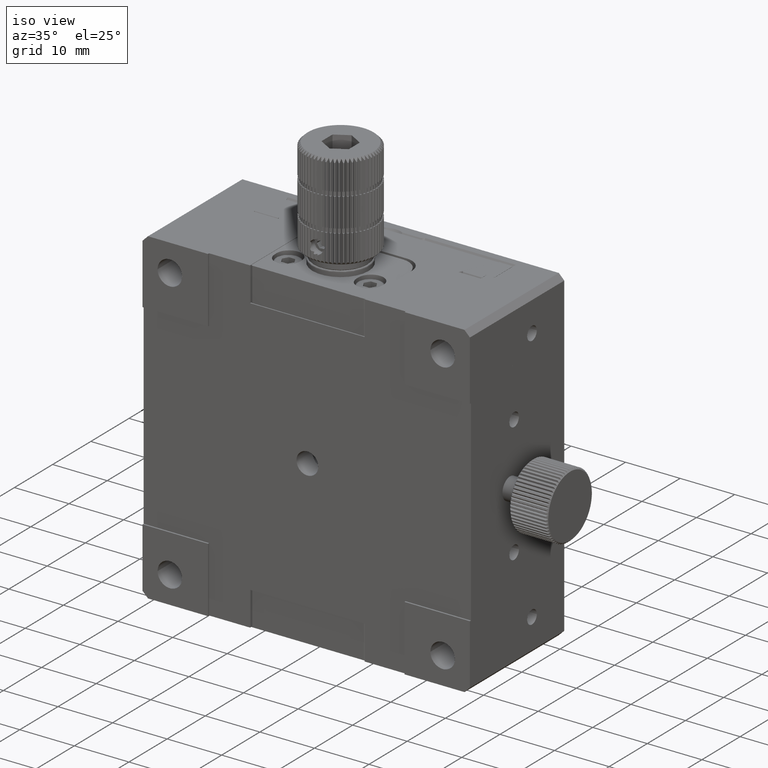
[diagram: clean part render]
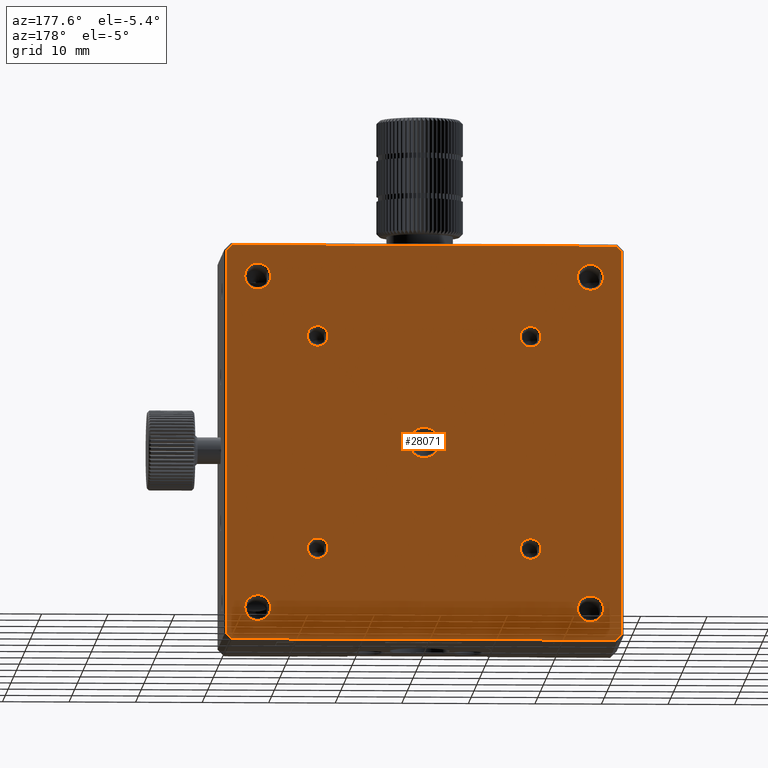
[diagram: tour spotlight — one face highlighted and labeled with its STEP entity id]
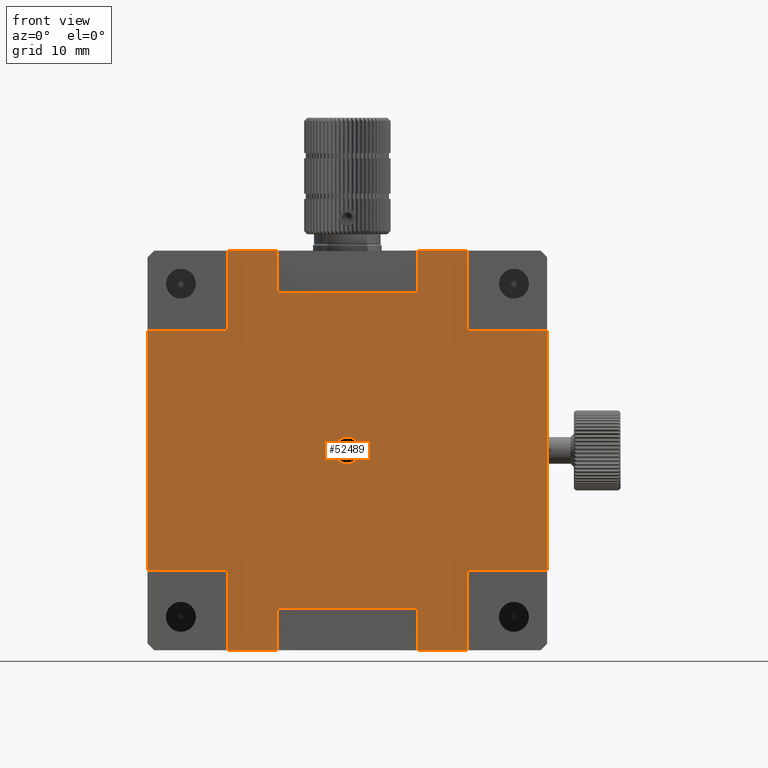
[diagram: tour spotlight — one face highlighted and labeled with its STEP entity id]
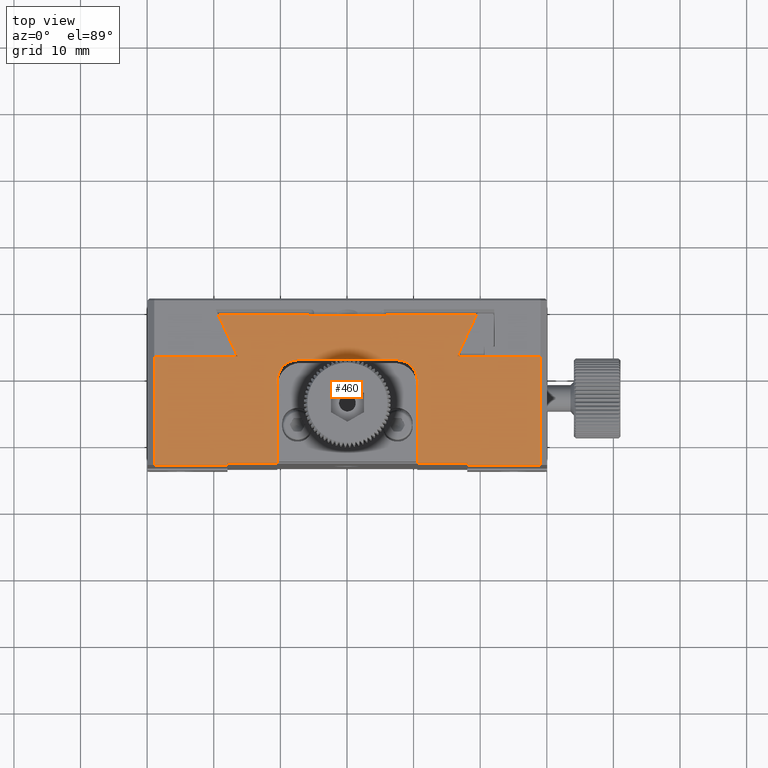
[diagram: tour spotlight — one face highlighted and labeled with its STEP entity id]
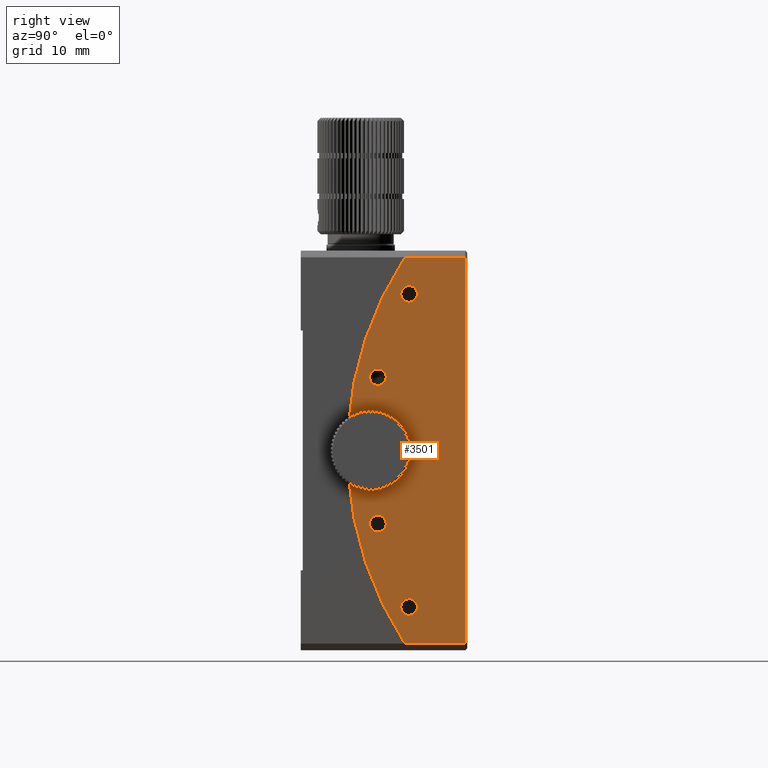
[diagram: tour spotlight — one face highlighted and labeled with its STEP entity id]
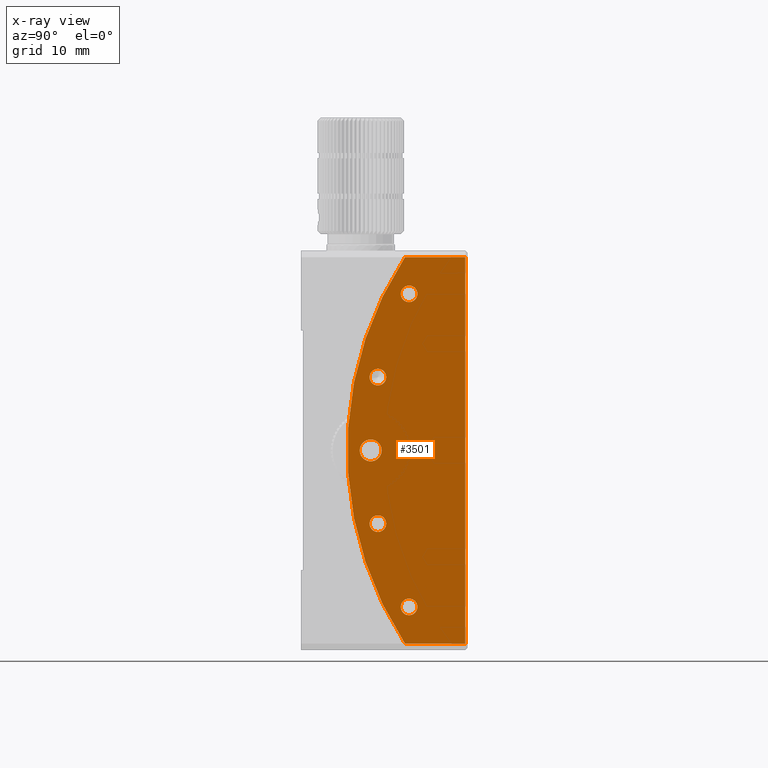
[diagram: x-ray of the same camera — body ghosted, this tour face saturated]
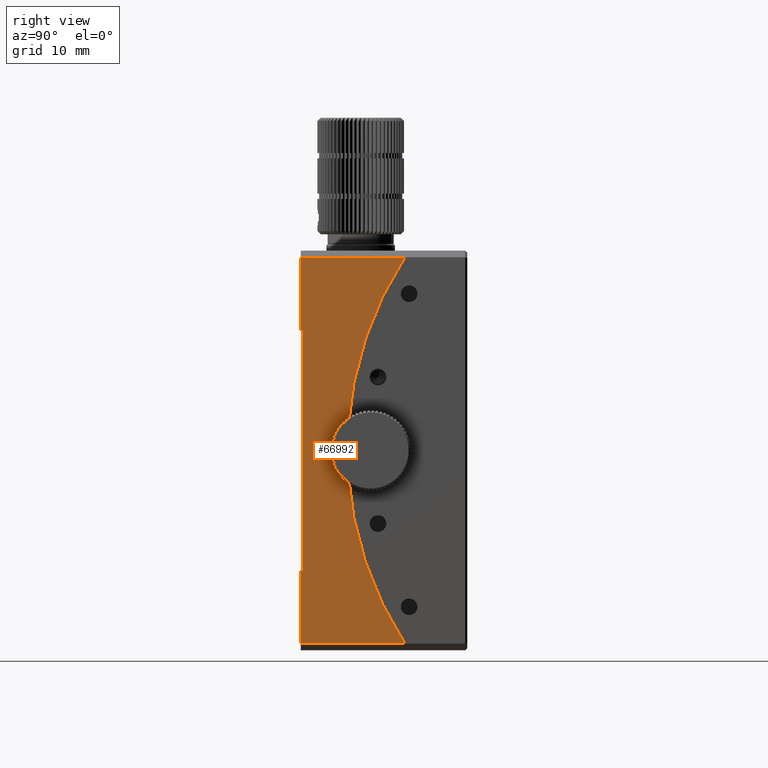
[diagram: tour spotlight — one face highlighted and labeled with its STEP entity id]
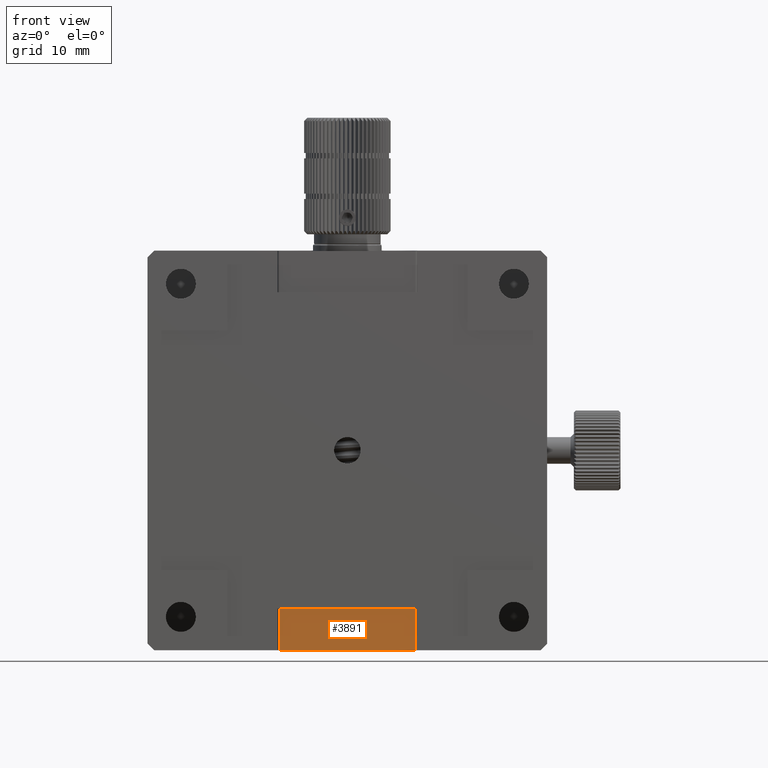
[diagram: tour spotlight — one face highlighted and labeled with its STEP entity id]
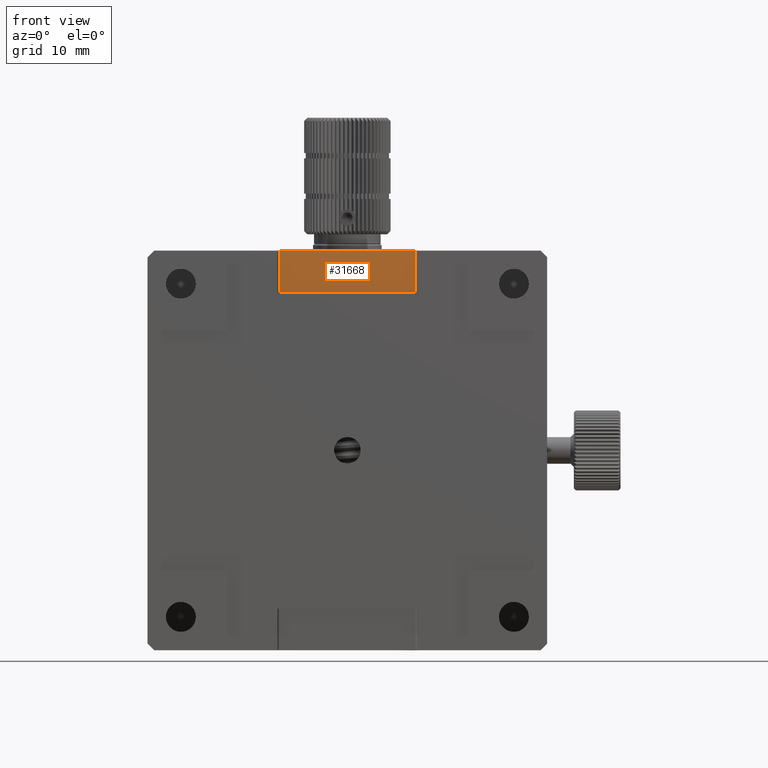
[diagram: tour spotlight — one face highlighted and labeled with its STEP entity id]
A machine part: a face-by-face anatomy tour. The part has 1900 B-rep faces; the first image is the clean iso view, then the 7 largest visible faces are spotlighted one at a time (largest first), each with its STEP entity span.

Face 1 — auxiliary view, entity #28071. In plain terms, the highlighted planar face has unit normal (0, 1, -0).
Definition (entity closure, byte-faithful):
#42 = EDGE_CURVE ( 'NONE', #53140, #53140, #31900, .T. ) ;
#107 = FACE_BOUND ( 'NONE', #27542, .T. ) ;
#445 = CARTESIAN_POINT ( 'NONE',  ( 23.10815170118479855, 61.33657315266577825, 75.22904667704483472 ) ) ;
#485 = DIRECTION ( 'NONE',  ( -3.558407130026029941E-15, -1.000000000000000000, -0.000000000000000000 ) ) ;
#527 = EDGE_LOOP ( 'NONE', ( #39153 ) ) ;
#1277 = EDGE_CURVE ( 'NONE', #32732, #32732, #60484, .T. ) ;
#1447 = CARTESIAN_POINT ( 'NONE',  ( 25.05815170114997770, 61.33657315262029641, 25.22904667704482762 ) ) ;
#1657 = VERTEX_POINT ( 'NONE', #5897 ) ;
#2107 = DIRECTION ( 'NONE',  ( -3.558407130254390185E-15, -1.000000000000000000, -0.000000000000000000 ) ) ;
#3573 = ORIENTED_EDGE ( 'NONE', *, *, #27987, .T. ) ;
#3836 = DIRECTION ( 'NONE',  ( -5.337610695350464320E-15, -1.000000000000000000, 5.223182788105286003E-29 ) ) ;
#3840 = CARTESIAN_POINT ( 'NONE',  ( 20.05815170114999191, 61.33657315266998467, 20.52904667704474306 ) ) ;
#4110 = EDGE_LOOP ( 'NONE', ( #56059 ) ) ;
#5593 = PLANE ( 'NONE',  #22642 ) ;
#5873 = VECTOR ( 'NONE', #18244, 999.9999999999998863 ) ;
#5897 = CARTESIAN_POINT ( 'NONE',  ( 79.75815170115002672, 61.33657315266974308, 21.35331074575672261 ) ) ;
#5940 = FACE_BOUND ( 'NONE', #28615, .T. ) ;
#6159 = VECTOR ( 'NONE', #45924, 1000.000000000000114 ) ;
#6226 = EDGE_LOOP ( 'NONE', ( #53581 ) ) ;
#6284 = FACE_BOUND ( 'NONE', #6226, .T. ) ;
#6762 = VECTOR ( 'NONE', #28222, 1000.000000000000000 ) ;
#6931 = DIRECTION ( 'NONE',  ( -1.000000000000000000, 3.558407130168499009E-15, 0.000000000000000000 ) ) ;
#7020 = EDGE_LOOP ( 'NONE', ( #28059 ) ) ;
#7763 = VERTEX_POINT ( 'NONE', #41691 ) ;
#7776 = CARTESIAN_POINT ( 'NONE',  ( 34.05815170115003809, 61.33657315262345833, 67.77904667699678498 ) ) ;
#8902 = CARTESIAN_POINT ( 'NONE',  ( 32.50815170114117336, 61.33657315260574450, 34.22904667704482051 ) ) ;
#9375 = CARTESIAN_POINT ( 'NONE',  ( 78.93388763243802941, 61.33657315266975729, 20.52904667704473596 ) ) ;
#9742 = LINE ( 'NONE', #25551, #6159 ) ;
#9827 = CIRCLE ( 'NONE', #51705, 1.550000000008822099 ) ;
#10057 = DIRECTION ( 'NONE',  ( -1.000000000000000000, 3.558407130168505320E-15, 0.000000000000000000 ) ) ;
#10066 = AXIS2_PLACEMENT_3D ( 'NONE', #37958, #485, #11804 ) ;
#10588 = EDGE_CURVE ( 'NONE', #15940, #24967, #19992, .T. ) ;
#10761 = DIRECTION ( 'NONE',  ( -1.000000000000000000, 4.044064531500966096E-15, 0.000000000000000000 ) ) ;
#11035 = ORIENTED_EDGE ( 'NONE', *, *, #13428, .T. ) ;
#11054 = VERTEX_POINT ( 'NONE', #63283 ) ;
#11648 = EDGE_CURVE ( 'NONE', #47610, #47610, #52582, .T. ) ;
#11804 = DIRECTION ( 'NONE',  ( -1.000000000000000000, 3.558407130168505320E-15, 0.000000000000000000 ) ) ;
#12234 = DIRECTION ( 'NONE',  ( 0.000000000000000000, -4.476705744430796725E-15, 1.000000000000000000 ) ) ;
#13428 = EDGE_CURVE ( 'NONE', #11054, #47876, #67807, .T. ) ;
#13789 = LINE ( 'NONE', #17920, #6762 ) ;
#13875 = CIRCLE ( 'NONE', #47998, 1.950000000022104274 ) ;
#13948 = LINE ( 'NONE', #34917, #14825 ) ;
#13982 = EDGE_CURVE ( 'NONE', #40237, #40237, #9827, .T. ) ;
#14079 = CARTESIAN_POINT ( 'NONE',  ( 64.50815170119807362, 61.33657315262340148, 66.22904667704473525 ) ) ;
#14327 = EDGE_LOOP ( 'NONE', ( #31159 ) ) ;
#14825 = VECTOR ( 'NONE', #35595, 1000.000000000000000 ) ;
#15163 = EDGE_CURVE ( 'NONE', #60556, #60556, #65112, .T. ) ;
#15280 = DIRECTION ( 'NONE',  ( -4.476705744524668018E-15, -1.000000000000000000, 1.002044716153003687E-29 ) ) ;
#15558 = CARTESIAN_POINT ( 'NONE',  ( 75.05815170115000967, 61.33657315262022536, 25.22904667704476012 ) ) ;
#15921 = CARTESIAN_POINT ( 'NONE',  ( 73.10815170112796579, 61.33657315266570009, 75.22904667704474946 ) ) ;
#15940 = VERTEX_POINT ( 'NONE', #9375 ) ;
#16289 = EDGE_CURVE ( 'NONE', #7763, #11054, #13789, .T. ) ;
#16613 = CARTESIAN_POINT ( 'NONE',  ( 79.75815170114999830, 61.33657315266974308, 21.35331074575670840 ) ) ;
#16698 = AXIS2_PLACEMENT_3D ( 'NONE', #21210, #16740, #12234 ) ;
#16740 = DIRECTION ( 'NONE',  ( -4.476705744524547322E-15, -1.000000000000000000, -4.476705744524668018E-15 ) ) ;
#16932 = CARTESIAN_POINT ( 'NONE',  ( 20.05815170114999191, 61.33657315266998467, 20.22904667704483828 ) ) ;
#17920 = CARTESIAN_POINT ( 'NONE',  ( 20.35815170114998551, 61.33657315266998467, 20.22904667704483828 ) ) ;
#18244 = DIRECTION ( 'NONE',  ( 0.7071067811865415775, -5.952629890872623610E-15, -0.7071067811865535679 ) ) ;
#18435 = EDGE_CURVE ( 'NONE', #67911, #29939, #28549, .T. ) ;
#19661 = CARTESIAN_POINT ( 'NONE',  ( 79.75815170115008357, 61.33657315266974308, 20.22904667704483828 ) ) ;
#19990 = CARTESIAN_POINT ( 'NONE',  ( 25.05815170115005586, 61.33657315266577115, 75.22904667704483472 ) ) ;
#19992 = LINE ( 'NONE', #3840, #34852 ) ;
#21078 = FACE_BOUND ( 'NONE', #4110, .T. ) ;
#21210 = CARTESIAN_POINT ( 'NONE',  ( 66.05815170114999546, 61.33657315260570186, 34.22904667704477788 ) ) ;
#21306 = EDGE_LOOP ( 'NONE', ( #63241 ) ) ;
#22485 = EDGE_CURVE ( 'NONE', #1657, #15940, #27253, .T. ) ;
#22642 = AXIS2_PLACEMENT_3D ( 'NONE', #16932, #63121, #10761 ) ;
#22691 = DIRECTION ( 'NONE',  ( -6.033820785914441798E-15, -1.000000000000000000, -0.000000000000000000 ) ) ;
#24127 = LINE ( 'NONE', #19661, #66677 ) ;
#24246 = CARTESIAN_POINT ( 'NONE',  ( 34.05815170115003809, 61.33657315262345122, 66.22904667704482051 ) ) ;
#24967 = VERTEX_POINT ( 'NONE', #28292 ) ;
#25551 = CARTESIAN_POINT ( 'NONE',  ( 21.18241576986194019, 61.33657315266997756, 20.52904667704483188 ) ) ;
#27238 = FACE_OUTER_BOUND ( 'NONE', #37844, .T. ) ;
#27253 = LINE ( 'NONE', #16613, #60766 ) ;
#27542 = EDGE_LOOP ( 'NONE', ( #52180 ) ) ;
#27579 = ORIENTED_EDGE ( 'NONE', *, *, #10588, .T. ) ;
#27748 = VERTEX_POINT ( 'NONE', #63952 ) ;
#27936 = DIRECTION ( 'NONE',  ( -4.476705744575652098E-15, -1.000000000000000000, -0.000000000000000000 ) ) ;
#27987 = EDGE_CURVE ( 'NONE', #24967, #7763, #9742, .T. ) ;
#28059 = ORIENTED_EDGE ( 'NONE', *, *, #13982, .T. ) ;
#28071 = ADVANCED_FACE ( 'NONE', ( #107, #37589, #62773, #5940, #21078, #6284, #58287, #57625, #53481, #27238 ), #5593, .T. ) ;
#28222 = DIRECTION ( 'NONE',  ( 9.309932406041760594E-32, 2.302122612911508771E-17, 1.000000000000000000 ) ) ;
#28292 = CARTESIAN_POINT ( 'NONE',  ( 21.18241576986193309, 61.33657315266989940, 20.52904667704472885 ) ) ;
#28549 = LINE ( 'NONE', #65426, #5873 ) ;
#28615 = EDGE_LOOP ( 'NONE', ( #32002 ) ) ;
#28766 = CIRCLE ( 'NONE', #16698, 1.550000000008822099 ) ;
#29060 = ORIENTED_EDGE ( 'NONE', *, *, #52247, .T. ) ;
#29570 = DIRECTION ( 'NONE',  ( 0.7071067811865444641, -5.952629890872297021E-15, 0.7071067811865505703 ) ) ;
#29939 = VERTEX_POINT ( 'NONE', #49030 ) ;
#31159 = ORIENTED_EDGE ( 'NONE', *, *, #11648, .T. ) ;
#31900 = CIRCLE ( 'NONE', #52861, 2.300000000047930371 ) ;
#32002 = ORIENTED_EDGE ( 'NONE', *, *, #15163, .T. ) ;
#32732 = VERTEX_POINT ( 'NONE', #15921 ) ;
#33068 = AXIS2_PLACEMENT_3D ( 'NONE', #24246, #57001, #67312 ) ;
#34472 = DIRECTION ( 'NONE',  ( -9.309932406041760594E-32, -2.302122612911508771E-17, -1.000000000000000000 ) ) ;
#34852 = VECTOR ( 'NONE', #39622, 1000.000000000000000 ) ;
#34917 = CARTESIAN_POINT ( 'NONE',  ( 20.05815170114999191, 61.33657315266998467, 79.92904667704483757 ) ) ;
#34948 = EDGE_CURVE ( 'NONE', #41594, #41594, #13875, .T. ) ;
#35595 = DIRECTION ( 'NONE',  ( 1.000000000000000000, -4.044064531500966096E-15, -0.000000000000000000 ) ) ;
#36271 = DIRECTION ( 'NONE',  ( -1.000000000000000000, 4.476705744430796725E-15, 0.000000000000000000 ) ) ;
#37589 = FACE_BOUND ( 'NONE', #7020, .T. ) ;
#37602 = DIRECTION ( 'NONE',  ( -0.7071067811865505703, 5.952629890872197625E-15, -0.7071067811865444641 ) ) ;
#37844 = EDGE_LOOP ( 'NONE', ( #56762, #11035, #66312, #42318, #29060, #51174, #27579, #3573 ) ) ;
#37958 = CARTESIAN_POINT ( 'NONE',  ( 75.05815170115006651, 61.33657315266569299, 75.22904667704474946 ) ) ;
#39063 = EDGE_CURVE ( 'NONE', #27748, #27748, #28766, .T. ) ;
#39153 = ORIENTED_EDGE ( 'NONE', *, *, #49345, .T. ) ;
#39317 = AXIS2_PLACEMENT_3D ( 'NONE', #19990, #3836, #40319 ) ;
#39622 = DIRECTION ( 'NONE',  ( -1.000000000000000000, 4.044064531500966096E-15, 0.000000000000000000 ) ) ;
#40237 = VERTEX_POINT ( 'NONE', #8902 ) ;
#40319 = DIRECTION ( 'NONE',  ( -1.000000000000000000, 3.558407130272234218E-15, 0.000000000000000000 ) ) ;
#41052 = CARTESIAN_POINT ( 'NONE',  ( 21.18241576986203256, 61.33657315266997756, 79.92904667704483757 ) ) ;
#41327 = CIRCLE ( 'NONE', #44605, 1.950000000022100721 ) ;
#41594 = VERTEX_POINT ( 'NONE', #63280 ) ;
#41691 = CARTESIAN_POINT ( 'NONE',  ( 20.35815170114999617, 61.33657315266999888, 21.35331074575679011 ) ) ;
#42318 = ORIENTED_EDGE ( 'NONE', *, *, #18435, .T. ) ;
#42831 = CARTESIAN_POINT ( 'NONE',  ( 78.93388763243815731, 61.33657315266977861, 79.92904667704472388 ) ) ;
#43692 = ORIENTED_EDGE ( 'NONE', *, *, #1277, .T. ) ;
#43696 = DIRECTION ( 'NONE',  ( -1.000000000000000000, 6.033820785880545233E-15, 0.000000000000000000 ) ) ;
#44605 = AXIS2_PLACEMENT_3D ( 'NONE', #15558, #52446, #10057 ) ;
#45924 = DIRECTION ( 'NONE',  ( -0.7071067811865474617, 5.952629890872297021E-15, 0.7071067811865474617 ) ) ;
#47421 = CIRCLE ( 'NONE', #33068, 1.549999999951964913 ) ;
#47610 = VERTEX_POINT ( 'NONE', #445 ) ;
#47876 = VERTEX_POINT ( 'NONE', #41052 ) ;
#47989 = CARTESIAN_POINT ( 'NONE',  ( 66.05815170115005230, 61.33657315262339438, 66.22904667704473525 ) ) ;
#47998 = AXIS2_PLACEMENT_3D ( 'NONE', #1447, #2107, #6931 ) ;
#49030 = CARTESIAN_POINT ( 'NONE',  ( 79.75815170115008357, 61.33657315266975729, 79.10478260833281183 ) ) ;
#49345 = EDGE_CURVE ( 'NONE', #53646, #53646, #41327, .T. ) ;
#50522 = VECTOR ( 'NONE', #29570, 1000.000000000000114 ) ;
#51174 = ORIENTED_EDGE ( 'NONE', *, *, #22485, .T. ) ;
#51705 = AXIS2_PLACEMENT_3D ( 'NONE', #58665, #15280, #36271 ) ;
#52180 = ORIENTED_EDGE ( 'NONE', *, *, #42, .T. ) ;
#52247 = EDGE_CURVE ( 'NONE', #29939, #1657, #24127, .T. ) ;
#52446 = DIRECTION ( 'NONE',  ( -3.558407130254253712E-15, -1.000000000000000000, -3.798678391393291428E-29 ) ) ;
#52582 = CIRCLE ( 'NONE', #39317, 1.949999999965257302 ) ;
#52861 = AXIS2_PLACEMENT_3D ( 'NONE', #53395, #22691, #43696 ) ;
#53140 = VERTEX_POINT ( 'NONE', #60217 ) ;
#53395 = CARTESIAN_POINT ( 'NONE',  ( 50.05815170115002388, 61.33657315275668509, 50.22904667704479209 ) ) ;
#53481 = FACE_BOUND ( 'NONE', #14327, .T. ) ;
#53508 = DIRECTION ( 'NONE',  ( -1.000000000000000000, 4.476705744594971301E-15, 0.000000000000000000 ) ) ;
#53581 = ORIENTED_EDGE ( 'NONE', *, *, #34948, .T. ) ;
#53646 = VERTEX_POINT ( 'NONE', #64275 ) ;
#55093 = AXIS2_PLACEMENT_3D ( 'NONE', #47989, #27936, #53508 ) ;
#56059 = ORIENTED_EDGE ( 'NONE', *, *, #58052, .T. ) ;
#56762 = ORIENTED_EDGE ( 'NONE', *, *, #16289, .T. ) ;
#56996 = EDGE_CURVE ( 'NONE', #47876, #67911, #13948, .T. ) ;
#57001 = DIRECTION ( 'NONE',  ( -4.476705744575852469E-15, -1.000000000000000000, 4.476705744575902956E-15 ) ) ;
#57490 = CARTESIAN_POINT ( 'NONE',  ( 20.35815170115007788, 61.33657315266998467, 79.10478260833288289 ) ) ;
#57625 = FACE_BOUND ( 'NONE', #61618, .T. ) ;
#58052 = EDGE_CURVE ( 'NONE', #60817, #60817, #47421, .T. ) ;
#58287 = FACE_BOUND ( 'NONE', #527, .T. ) ;
#58665 = CARTESIAN_POINT ( 'NONE',  ( 34.05815170114999546, 61.33657315260573739, 34.22904667704482051 ) ) ;
#60217 = CARTESIAN_POINT ( 'NONE',  ( 47.75815170110209351, 61.33657315275669930, 50.22904667704479209 ) ) ;
#60484 = CIRCLE ( 'NONE', #10066, 1.950000000022100721 ) ;
#60556 = VERTEX_POINT ( 'NONE', #14079 ) ;
#60766 = VECTOR ( 'NONE', #37602, 1000.000000000000114 ) ;
#60817 = VERTEX_POINT ( 'NONE', #7776 ) ;
#61618 = EDGE_LOOP ( 'NONE', ( #43692 ) ) ;
#62773 = FACE_BOUND ( 'NONE', #21306, .T. ) ;
#63121 = DIRECTION ( 'NONE',  ( 4.044064531500966096E-15, 1.000000000000000000, -2.302122612911508771E-17 ) ) ;
#63241 = ORIENTED_EDGE ( 'NONE', *, *, #39063, .T. ) ;
#63280 = CARTESIAN_POINT ( 'NONE',  ( 23.10815170112787342, 61.33657315262030352, 25.22904667704482762 ) ) ;
#63283 = CARTESIAN_POINT ( 'NONE',  ( 20.35815170115005301, 61.33657315266999177, 79.10478260833288289 ) ) ;
#63952 = CARTESIAN_POINT ( 'NONE',  ( 66.05815170114999546, 61.33657315260569476, 35.77904667705359998 ) ) ;
#64275 = CARTESIAN_POINT ( 'NONE',  ( 73.10815170112790895, 61.33657315262023246, 25.22904667704476012 ) ) ;
#65112 = CIRCLE ( 'NONE', #55093, 1.549999999951978680 ) ;
#65426 = CARTESIAN_POINT ( 'NONE',  ( 78.93388763243818573, 61.33657315266975019, 79.92904667704473809 ) ) ;
#66312 = ORIENTED_EDGE ( 'NONE', *, *, #56996, .T. ) ;
#66677 = VECTOR ( 'NONE', #34472, 1000.000000000000000 ) ;
#67312 = DIRECTION ( 'NONE',  ( 0.000000000000000000, 4.476705744595011533E-15, 1.000000000000000000 ) ) ;
#67807 = LINE ( 'NONE', #57490, #50522 ) ;
#67911 = VERTEX_POINT ( 'NONE', #42831 ) ;

Face 2 — front view, entity #52489. In plain terms, the highlighted planar face has unit normal (-0, -1, 0).
Definition (entity closure, byte-faithful):
#37 = DIRECTION ( 'NONE',  ( -4.256270054397946562E-44, -1.219044193948983948E-29, -1.000000000000000000 ) ) ;
#47 = ORIENTED_EDGE ( 'NONE', *, *, #9160, .T. ) ;
#262 = ORIENTED_EDGE ( 'NONE', *, *, #48892, .T. ) ;
#623 = CARTESIAN_POINT ( 'NONE',  ( 50.05815170114995283, 36.63657315266980419, 80.22904667704486315 ) ) ;
#885 = ORIENTED_EDGE ( 'NONE', *, *, #7280, .T. ) ;
#945 = DIRECTION ( 'NONE',  ( -1.000000000000000000, 3.491481338843133355E-15, -0.000000000000000000 ) ) ;
#1254 = VERTEX_POINT ( 'NONE', #6631 ) ;
#1946 = CARTESIAN_POINT ( 'NONE',  ( 50.05815170114995283, 36.63657315266980419, 20.22904667704478499 ) ) ;
#2196 = ORIENTED_EDGE ( 'NONE', *, *, #31732, .T. ) ;
#2535 = DIRECTION ( 'NONE',  ( 1.000000000000000000, -3.491481338843133355E-15, 0.000000000000000000 ) ) ;
#2781 = ORIENTED_EDGE ( 'NONE', *, *, #8369, .T. ) ;
#3116 = CARTESIAN_POINT ( 'NONE',  ( 60.55815170114989598, 36.63657315266976866, 20.22904667704478499 ) ) ;
#3400 = VECTOR ( 'NONE', #65487, 1000.000000000000000 ) ;
#3666 = VERTEX_POINT ( 'NONE', #45333 ) ;
#3765 = DIRECTION ( 'NONE',  ( -1.000000000000000000, 3.491481338843133355E-15, -0.000000000000000000 ) ) ;
#3786 = VECTOR ( 'NONE', #49921, 1000.000000000000000 ) ;
#4179 = EDGE_CURVE ( 'NONE', #22310, #50048, #15773, .T. ) ;
#4984 = ORIENTED_EDGE ( 'NONE', *, *, #64367, .T. ) ;
#5155 = CARTESIAN_POINT ( 'NONE',  ( 39.55815170114983914, 36.63657315266986814, 20.22904667704485959 ) ) ;
#5613 = LINE ( 'NONE', #41446, #30299 ) ;
#5673 = CARTESIAN_POINT ( 'NONE',  ( 68.05815170115000967, 36.63657315266974024, 50.22904667704483472 ) ) ;
#5726 = EDGE_CURVE ( 'NONE', #22064, #56882, #55805, .T. ) ;
#6240 = EDGE_LOOP ( 'NONE', ( #2196, #2781, #66744, #20854, #39547, #19925, #47, #7301, #22617, #65941, #12830, #46920, #56464, #40080, #262, #20120, #885, #34990, #15402, #4984 ) ) ;
#6420 = EDGE_CURVE ( 'NONE', #16758, #54448, #28866, .T. ) ;
#6631 = CARTESIAN_POINT ( 'NONE',  ( 68.05815170114986756, 36.63657315266973313, 32.22904667704477077 ) ) ;
#6922 = LINE ( 'NONE', #64448, #55517 ) ;
#7280 = EDGE_CURVE ( 'NONE', #30379, #1254, #55169, .T. ) ;
#7301 = ORIENTED_EDGE ( 'NONE', *, *, #44596, .T. ) ;
#7627 = CARTESIAN_POINT ( 'NONE',  ( 68.05815170114983914, 36.63657315266974024, 50.22904667704483472 ) ) ;
#7760 = CIRCLE ( 'NONE', #26470, 1.999999999999988010 ) ;
#8369 = EDGE_CURVE ( 'NONE', #49413, #22310, #50613, .T. ) ;
#8416 = CARTESIAN_POINT ( 'NONE',  ( 50.05815170114995283, 36.63657315266980419, 68.22904667704473525 ) ) ;
#8603 = CARTESIAN_POINT ( 'NONE',  ( 50.05815170114995283, 36.63657315266980419, 32.22904667704494130 ) ) ;
#9160 = EDGE_CURVE ( 'NONE', #9214, #32421, #5613, .T. ) ;
#9199 = CARTESIAN_POINT ( 'NONE',  ( 20.05815170115002033, 36.63657315266991077, 68.22904667704494841 ) ) ;
#9214 = VERTEX_POINT ( 'NONE', #25567 ) ;
#9566 = EDGE_CURVE ( 'NONE', #56882, #16758, #19927, .T. ) ;
#9656 = CARTESIAN_POINT ( 'NONE',  ( 80.05815170114999546, 36.63657315266971892, 68.22904667704473525 ) ) ;
#9931 = DIRECTION ( 'NONE',  ( -4.256270054397946562E-44, -1.219044193948983948E-29, -1.000000000000000000 ) ) ;
#10025 = CARTESIAN_POINT ( 'NONE',  ( 50.05815170114995283, 36.63657315266980419, 26.47904667704485959 ) ) ;
#10743 = CARTESIAN_POINT ( 'NONE',  ( 68.05815170115005230, 36.63657315266974734, 80.22904667704474946 ) ) ;
#11142 = DIRECTION ( 'NONE',  ( 3.491481338843133355E-15, 1.000000000000000000, -1.219044193948983948E-29 ) ) ;
#11151 = EDGE_CURVE ( 'NONE', #54302, #30379, #28088, .T. ) ;
#12238 = VECTOR ( 'NONE', #43809, 1000.000000000000000 ) ;
#12830 = ORIENTED_EDGE ( 'NONE', *, *, #9566, .T. ) ;
#13137 = LINE ( 'NONE', #34114, #3400 ) ;
#13568 = LINE ( 'NONE', #40753, #61805 ) ;
#13664 = PLANE ( 'NONE',  #36313 ) ;
#14954 = VECTOR ( 'NONE', #37, 1000.000000000000000 ) ;
#15305 = VECTOR ( 'NONE', #28272, 1000.000000000000000 ) ;
#15402 = ORIENTED_EDGE ( 'NONE', *, *, #31491, .T. ) ;
#15773 = LINE ( 'NONE', #34819, #29960 ) ;
#16758 = VERTEX_POINT ( 'NONE', #39425 ) ;
#17268 = DIRECTION ( 'NONE',  ( -1.000000000000000000, 3.491481338843133355E-15, -0.000000000000000000 ) ) ;
#17775 = CARTESIAN_POINT ( 'NONE',  ( 80.05815170114989598, 36.63657315266971892, 32.22904667704472814 ) ) ;
#17782 = CARTESIAN_POINT ( 'NONE',  ( 60.55815170114986756, 36.63657315266978287, 26.47904667704479564 ) ) ;
#19683 = VERTEX_POINT ( 'NONE', #9656 ) ;
#19925 = ORIENTED_EDGE ( 'NONE', *, *, #21660, .T. ) ;
#19927 = LINE ( 'NONE', #45440, #53483 ) ;
#20120 = ORIENTED_EDGE ( 'NONE', *, *, #11151, .T. ) ;
#20854 = ORIENTED_EDGE ( 'NONE', *, *, #33726, .T. ) ;
#21660 = EDGE_CURVE ( 'NONE', #63887, #9214, #47793, .T. ) ;
#22064 = VERTEX_POINT ( 'NONE', #27671 ) ;
#22269 = EDGE_CURVE ( 'NONE', #45705, #63887, #13568, .T. ) ;
#22310 = VERTEX_POINT ( 'NONE', #25910 ) ;
#22617 = ORIENTED_EDGE ( 'NONE', *, *, #52397, .T. ) ;
#22797 = LINE ( 'NONE', #65162, #12238 ) ;
#23631 = DIRECTION ( 'NONE',  ( 1.000000000000000000, -3.491481338843133355E-15, 0.000000000000000000 ) ) ;
#25037 = CARTESIAN_POINT ( 'NONE',  ( 60.55815170115005941, 36.63657315266976866, 73.97904667704477788 ) ) ;
#25041 = CARTESIAN_POINT ( 'NONE',  ( 32.05815170115000967, 36.63657315266988235, 68.22904667704490578 ) ) ;
#25082 = CARTESIAN_POINT ( 'NONE',  ( 39.55815170114987467, 36.63657315266983971, 26.47904667704485604 ) ) ;
#25567 = CARTESIAN_POINT ( 'NONE',  ( 32.05815170115003099, 36.63657315266986814, 80.22904667704489157 ) ) ;
#25910 = CARTESIAN_POINT ( 'NONE',  ( 60.55815170115007362, 36.63657315266976866, 80.22904667704477788 ) ) ;
#25949 = CARTESIAN_POINT ( 'NONE',  ( 60.55815170114987467, 36.63657315266976866, 50.22904667704483472 ) ) ;
#26470 = AXIS2_PLACEMENT_3D ( 'NONE', #58328, #11142, #32120 ) ;
#27671 = CARTESIAN_POINT ( 'NONE',  ( 20.05815170114992085, 36.63657315266989656, 32.22904667704494130 ) ) ;
#28088 = LINE ( 'NONE', #1946, #30474 ) ;
#28272 = DIRECTION ( 'NONE',  ( 4.256270054397946562E-44, 1.219044193948983948E-29, 1.000000000000000000 ) ) ;
#28788 = CARTESIAN_POINT ( 'NONE',  ( 50.05815170114995283, 36.63657315266980419, 50.22904667704483472 ) ) ;
#28866 = LINE ( 'NONE', #60567, #3786 ) ;
#29137 = FACE_BOUND ( 'NONE', #57514, .T. ) ;
#29395 = DIRECTION ( 'NONE',  ( -1.000000000000000000, 3.491481338843133355E-15, -0.000000000000000000 ) ) ;
#29581 = DIRECTION ( 'NONE',  ( 1.000000000000000000, -3.491481338843133355E-15, 0.000000000000000000 ) ) ;
#29960 = VECTOR ( 'NONE', #66170, 1000.000000000000000 ) ;
#30299 = VECTOR ( 'NONE', #56966, 1000.000000000000000 ) ;
#30379 = VERTEX_POINT ( 'NONE', #43427 ) ;
#30474 = VECTOR ( 'NONE', #64278, 1000.000000000000000 ) ;
#31290 = VERTEX_POINT ( 'NONE', #17782 ) ;
#31491 = EDGE_CURVE ( 'NONE', #32662, #19683, #35634, .T. ) ;
#31732 = EDGE_CURVE ( 'NONE', #54938, #49413, #38333, .T. ) ;
#32120 = DIRECTION ( 'NONE',  ( 1.000000000000000000, -3.469446951953635094E-15, 0.000000000000000000 ) ) ;
#32421 = VERTEX_POINT ( 'NONE', #25041 ) ;
#32662 = VERTEX_POINT ( 'NONE', #17775 ) ;
#33195 = EDGE_CURVE ( 'NONE', #1254, #32662, #59694, .T. ) ;
#33531 = LINE ( 'NONE', #8416, #51967 ) ;
#33726 = EDGE_CURVE ( 'NONE', #50048, #45705, #6922, .T. ) ;
#33840 = CARTESIAN_POINT ( 'NONE',  ( 50.05815170114995283, 36.63657315266980419, 32.22904667704477077 ) ) ;
#33955 = CARTESIAN_POINT ( 'NONE',  ( 39.55815170115005230, 36.63657315266986814, 80.22904667704484893 ) ) ;
#34114 = CARTESIAN_POINT ( 'NONE',  ( 50.05815170114995283, 36.63657315266980419, 68.22904667704490578 ) ) ;
#34819 = CARTESIAN_POINT ( 'NONE',  ( 60.55815170115005230, 36.63657315266976866, 50.22904667704483472 ) ) ;
#34990 = ORIENTED_EDGE ( 'NONE', *, *, #33195, .T. ) ;
#35634 = LINE ( 'NONE', #67675, #55035 ) ;
#35746 = VECTOR ( 'NONE', #3765, 1000.000000000000000 ) ;
#36160 = LINE ( 'NONE', #36505, #14954 ) ;
#36313 = AXIS2_PLACEMENT_3D ( 'NONE', #28788, #44306, #23631 ) ;
#36357 = VERTEX_POINT ( 'NONE', #25082 ) ;
#36505 = CARTESIAN_POINT ( 'NONE',  ( 20.05815170115000967, 36.63657315266991077, 50.22904667704483472 ) ) ;
#38333 = LINE ( 'NONE', #5673, #53973 ) ;
#39030 = VECTOR ( 'NONE', #62826, 1000.000000000000000 ) ;
#39425 = CARTESIAN_POINT ( 'NONE',  ( 32.05815170114985335, 36.63657315266986814, 20.22904667704488446 ) ) ;
#39547 = ORIENTED_EDGE ( 'NONE', *, *, #22269, .T. ) ;
#39715 = VECTOR ( 'NONE', #40009, 1000.000000000000000 ) ;
#40009 = DIRECTION ( 'NONE',  ( 1.000000000000000000, -3.491481338843133355E-15, 0.000000000000000000 ) ) ;
#40080 = ORIENTED_EDGE ( 'NONE', *, *, #64786, .T. ) ;
#40753 = CARTESIAN_POINT ( 'NONE',  ( 39.55815170115002388, 36.63657315266983971, 50.22904667704483472 ) ) ;
#41446 = CARTESIAN_POINT ( 'NONE',  ( 32.05815170115003099, 36.63657315266986814, 50.22904667704483472 ) ) ;
#41811 = LINE ( 'NONE', #25949, #39030 ) ;
#41831 = DIRECTION ( 'NONE',  ( 4.256270054397946562E-44, 1.219044193948983948E-29, 1.000000000000000000 ) ) ;
#43427 = CARTESIAN_POINT ( 'NONE',  ( 68.05815170114983914, 36.63657315266975445, 20.22904667704476722 ) ) ;
#43809 = DIRECTION ( 'NONE',  ( 4.256270054397946562E-44, 1.219044193948983948E-29, 1.000000000000000000 ) ) ;
#44306 = DIRECTION ( 'NONE',  ( -3.491481338843133355E-15, -1.000000000000000000, 1.219044193948983948E-29 ) ) ;
#44596 = EDGE_CURVE ( 'NONE', #32421, #60558, #13137, .T. ) ;
#45333 = CARTESIAN_POINT ( 'NONE',  ( 52.05815170114993151, 36.63657315266979708, 50.22904667704482051 ) ) ;
#45440 = CARTESIAN_POINT ( 'NONE',  ( 32.05815170114988177, 36.63657315266986814, 50.22904667704483472 ) ) ;
#45705 = VERTEX_POINT ( 'NONE', #53914 ) ;
#46454 = CARTESIAN_POINT ( 'NONE',  ( 50.05815170114995283, 36.63657315266980419, 80.22904667704477788 ) ) ;
#46899 = LINE ( 'NONE', #10025, #39715 ) ;
#46920 = ORIENTED_EDGE ( 'NONE', *, *, #6420, .T. ) ;
#47793 = LINE ( 'NONE', #623, #58316 ) ;
#48892 = EDGE_CURVE ( 'NONE', #31290, #54302, #41811, .T. ) ;
#49047 = DIRECTION ( 'NONE',  ( 4.256270054397946562E-44, 1.219044193948983948E-29, 1.000000000000000000 ) ) ;
#49413 = VERTEX_POINT ( 'NONE', #10743 ) ;
#49921 = DIRECTION ( 'NONE',  ( 1.000000000000000000, -3.491481338843133355E-15, 0.000000000000000000 ) ) ;
#50048 = VERTEX_POINT ( 'NONE', #25037 ) ;
#50099 = DIRECTION ( 'NONE',  ( 4.256270054397946562E-44, 1.219044193948983948E-29, 1.000000000000000000 ) ) ;
#50613 = LINE ( 'NONE', #46454, #35746 ) ;
#51967 = VECTOR ( 'NONE', #29395, 1000.000000000000000 ) ;
#52397 = EDGE_CURVE ( 'NONE', #60558, #22064, #36160, .T. ) ;
#52489 = ADVANCED_FACE ( 'NONE', ( #65659, #29137 ), #13664, .T. ) ;
#53483 = VECTOR ( 'NONE', #9931, 1000.000000000000000 ) ;
#53914 = CARTESIAN_POINT ( 'NONE',  ( 39.55815170115002388, 36.63657315266982550, 73.97904667704486315 ) ) ;
#53973 = VECTOR ( 'NONE', #49047, 1000.000000000000000 ) ;
#54302 = VERTEX_POINT ( 'NONE', #3116 ) ;
#54448 = VERTEX_POINT ( 'NONE', #5155 ) ;
#54938 = VERTEX_POINT ( 'NONE', #57761 ) ;
#55035 = VECTOR ( 'NONE', #41831, 1000.000000000000000 ) ;
#55169 = LINE ( 'NONE', #7627, #15305 ) ;
#55517 = VECTOR ( 'NONE', #17268, 1000.000000000000000 ) ;
#55805 = LINE ( 'NONE', #8603, #63113 ) ;
#56464 = ORIENTED_EDGE ( 'NONE', *, *, #59975, .T. ) ;
#56882 = VERTEX_POINT ( 'NONE', #66273 ) ;
#56966 = DIRECTION ( 'NONE',  ( -4.256270054397946562E-44, -1.219044193948983948E-29, -1.000000000000000000 ) ) ;
#57514 = EDGE_LOOP ( 'NONE', ( #58872 ) ) ;
#57761 = CARTESIAN_POINT ( 'NONE',  ( 68.05815170115000967, 36.63657315266974024, 68.22904667704476367 ) ) ;
#58316 = VECTOR ( 'NONE', #945, 1000.000000000000000 ) ;
#58328 = CARTESIAN_POINT ( 'NONE',  ( 50.05815170114994572, 36.63657315266980419, 50.22904667704482051 ) ) ;
#58872 = ORIENTED_EDGE ( 'NONE', *, *, #61128, .T. ) ;
#59694 = LINE ( 'NONE', #33840, #62043 ) ;
#59975 = EDGE_CURVE ( 'NONE', #54448, #36357, #22797, .T. ) ;
#60558 = VERTEX_POINT ( 'NONE', #9199 ) ;
#60567 = CARTESIAN_POINT ( 'NONE',  ( 50.05815170114995283, 36.63657315266980419, 20.22904667704488801 ) ) ;
#61128 = EDGE_CURVE ( 'NONE', #3666, #3666, #7760, .T. ) ;
#61805 = VECTOR ( 'NONE', #50099, 1000.000000000000000 ) ;
#62043 = VECTOR ( 'NONE', #2535, 1000.000000000000000 ) ;
#62826 = DIRECTION ( 'NONE',  ( -4.256270054397946562E-44, -1.219044193948983948E-29, -1.000000000000000000 ) ) ;
#63113 = VECTOR ( 'NONE', #29581, 1000.000000000000000 ) ;
#63887 = VERTEX_POINT ( 'NONE', #33955 ) ;
#64278 = DIRECTION ( 'NONE',  ( 1.000000000000000000, -3.491481338843133355E-15, 0.000000000000000000 ) ) ;
#64367 = EDGE_CURVE ( 'NONE', #19683, #54938, #33531, .T. ) ;
#64448 = CARTESIAN_POINT ( 'NONE',  ( 50.05815170114995283, 36.63657315266980419, 73.97904667704477788 ) ) ;
#64786 = EDGE_CURVE ( 'NONE', #36357, #31290, #46899, .T. ) ;
#65162 = CARTESIAN_POINT ( 'NONE',  ( 39.55815170114983914, 36.63657315266983971, 50.22904667704483472 ) ) ;
#65487 = DIRECTION ( 'NONE',  ( -1.000000000000000000, 3.491481338843133355E-15, -0.000000000000000000 ) ) ;
#65659 = FACE_OUTER_BOUND ( 'NONE', #6240, .T. ) ;
#65941 = ORIENTED_EDGE ( 'NONE', *, *, #5726, .T. ) ;
#66170 = DIRECTION ( 'NONE',  ( -4.256270054397946562E-44, -1.219044193948983948E-29, -1.000000000000000000 ) ) ;
#66273 = CARTESIAN_POINT ( 'NONE',  ( 32.05815170114988177, 36.63657315266986814, 32.22904667704490578 ) ) ;
#66744 = ORIENTED_EDGE ( 'NONE', *, *, #4179, .T. ) ;
#67675 = CARTESIAN_POINT ( 'NONE',  ( 80.05815170114988177, 36.63657315266970471, 50.22904667704483472 ) ) ;

Face 3 — top view, entity #460. In plain terms, the highlighted planar face has unit normal (0, 0, 1).
Definition (entity closure, byte-faithful):
#460 = ADVANCED_FACE ( 'NONE', ( #20610 ), #46471, .T. ) ;
#623 = CARTESIAN_POINT ( 'NONE',  ( 50.05815170114995283, 36.63657315266980419, 80.22904667704486315 ) ) ;
#811 = LINE ( 'NONE', #31441, #12096 ) ;
#945 = DIRECTION ( 'NONE',  ( -1.000000000000000000, 3.491481338843133355E-15, -0.000000000000000000 ) ) ;
#1082 = CARTESIAN_POINT ( 'NONE',  ( 55.80815170115013046, 58.94480577836247193, 80.22904667704482051 ) ) ;
#1178 = VERTEX_POINT ( 'NONE', #56303 ) ;
#1379 = EDGE_CURVE ( 'NONE', #1178, #47338, #811, .T. ) ;
#1506 = LINE ( 'NONE', #44177, #9801 ) ;
#1508 = CARTESIAN_POINT ( 'NONE',  ( 20.05815170115014823, 36.33657315266990651, 80.22904667704491999 ) ) ;
#2902 = VERTEX_POINT ( 'NONE', #60931 ) ;
#3392 = LINE ( 'NONE', #66398, #55186 ) ;
#3665 = VERTEX_POINT ( 'NONE', #32828 ) ;
#3762 = CARTESIAN_POINT ( 'NONE',  ( 60.55815170115008783, 49.03657315266978145, 80.22904667704477788 ) ) ;
#3765 = DIRECTION ( 'NONE',  ( -1.000000000000000000, 3.491481338843133355E-15, -0.000000000000000000 ) ) ;
#3956 = LINE ( 'NONE', #62811, #53297 ) ;
#4616 = LINE ( 'NONE', #51477, #19037 ) ;
#5022 = EDGE_CURVE ( 'NONE', #61745, #28337, #4616, .T. ) ;
#5114 = CARTESIAN_POINT ( 'NONE',  ( 20.05815170115014823, 52.64446860276289897, 80.22904667704491999 ) ) ;
#6108 = EDGE_CURVE ( 'NONE', #43224, #1178, #3956, .T. ) ;
#6131 = LINE ( 'NONE', #32257, #26517 ) ;
#6445 = LINE ( 'NONE', #58124, #37930 ) ;
#6520 = ORIENTED_EDGE ( 'NONE', *, *, #19409, .T. ) ;
#6689 = ORIENTED_EDGE ( 'NONE', *, *, #63096, .T. ) ;
#6999 = DIRECTION ( 'NONE',  ( 0.000000000000000000, -1.000000000000000000, -0.000000000000000000 ) ) ;
#8262 = ORIENTED_EDGE ( 'NONE', *, *, #29970, .T. ) ;
#8369 = EDGE_CURVE ( 'NONE', #49413, #22310, #50613, .T. ) ;
#8447 = EDGE_CURVE ( 'NONE', #47338, #14828, #18735, .T. ) ;
#8547 = DIRECTION ( 'NONE',  ( -1.000000000000000000, -0.000000000000000000, 3.491481338843133355E-15 ) ) ;
#9214 = VERTEX_POINT ( 'NONE', #25567 ) ;
#9308 = VERTEX_POINT ( 'NONE', #32758 ) ;
#9762 = ORIENTED_EDGE ( 'NONE', *, *, #8369, .F. ) ;
#9801 = VECTOR ( 'NONE', #6999, 1000.000000000000000 ) ;
#10743 = CARTESIAN_POINT ( 'NONE',  ( 68.05815170115005230, 36.63657315266974734, 80.22904667704474946 ) ) ;
#10942 = CARTESIAN_POINT ( 'NONE',  ( 30.63616119201289223, 58.94480577836445434, 80.22904667704422366 ) ) ;
#10947 = DIRECTION ( 'NONE',  ( 1.000000000000000000, 0.000000000000000000, -3.491481338843133355E-15 ) ) ;
#11346 = ORIENTED_EDGE ( 'NONE', *, *, #21660, .F. ) ;
#11366 = ORIENTED_EDGE ( 'NONE', *, *, #34060, .T. ) ;
#12096 = VECTOR ( 'NONE', #57652, 1000.000000000000000 ) ;
#12322 = EDGE_CURVE ( 'NONE', #28337, #59607, #26061, .T. ) ;
#12791 = CARTESIAN_POINT ( 'NONE',  ( 69.48014221028628867, 58.94480577836244350, 80.22904667704474946 ) ) ;
#14098 = CIRCLE ( 'NONE', #47077, 3.099999999999998757 ) ;
#14421 = DIRECTION ( 'NONE',  ( 1.000000000000000000, 0.000000000000000000, -4.476705744456278510E-15 ) ) ;
#14828 = VERTEX_POINT ( 'NONE', #37057 ) ;
#15103 = LINE ( 'NONE', #20277, #39111 ) ;
#15213 = ORIENTED_EDGE ( 'NONE', *, *, #6108, .T. ) ;
#15494 = LINE ( 'NONE', #47535, #66668 ) ;
#15634 = DIRECTION ( 'NONE',  ( -1.000000000000000000, 0.000000000000000000, 4.476705744456278510E-15 ) ) ;
#15852 = DIRECTION ( 'NONE',  ( 0.000000000000000000, -1.000000000000000000, -0.000000000000000000 ) ) ;
#15908 = VECTOR ( 'NONE', #54461, 1000.000000000000000 ) ;
#15945 = CIRCLE ( 'NONE', #52255, 3.099999999999998757 ) ;
#16005 = CARTESIAN_POINT ( 'NONE',  ( 39.55815170115006651, 49.03657315266984540, 80.22904667704486315 ) ) ;
#16933 = VECTOR ( 'NONE', #60166, 1000.000000000000000 ) ;
#17030 = LINE ( 'NONE', #64203, #62549 ) ;
#17172 = CARTESIAN_POINT ( 'NONE',  ( 32.05815170115002388, 36.33657315266988519, 80.22904667704489157 ) ) ;
#17586 = LINE ( 'NONE', #59598, #15908 ) ;
#17814 = CARTESIAN_POINT ( 'NONE',  ( 32.05815170115003099, 61.33657315266990651, 80.22904667704487736 ) ) ;
#17957 = CARTESIAN_POINT ( 'NONE',  ( 67.55308950191326289, 54.73486892724659469, 80.22904667704474946 ) ) ;
#18051 = ORIENTED_EDGE ( 'NONE', *, *, #41958, .T. ) ;
#18735 = B_SPLINE_CURVE_WITH_KNOTS ( 'NONE', 3,
 ( #10942, #37094, #47119, #25740 ),
 .UNSPECIFIED., .F., .F.,
 ( 4, 4 ),
 ( 4.812411825816293448E-16, 0.006944946152545847934 ),
 .UNSPECIFIED. ) ;
#19037 = VECTOR ( 'NONE', #46283, 1000.000000000000000 ) ;
#19380 = DIRECTION ( 'NONE',  ( 0.000000000000000000, -1.000000000000000000, -0.000000000000000000 ) ) ;
#19409 = EDGE_CURVE ( 'NONE', #63887, #32949, #17586, .T. ) ;
#19569 = VERTEX_POINT ( 'NONE', #50332 ) ;
#19710 = CARTESIAN_POINT ( 'NONE',  ( 21.05815170115012336, 61.33657315266990651, 80.22904667704491999 ) ) ;
#20277 = CARTESIAN_POINT ( 'NONE',  ( 55.80815170115025836, 96.33657315266978571, 80.22904667704480630 ) ) ;
#20610 = FACE_OUTER_BOUND ( 'NONE', #55959, .T. ) ;
#21660 = EDGE_CURVE ( 'NONE', #63887, #9214, #47793, .T. ) ;
#22310 = VERTEX_POINT ( 'NONE', #25910 ) ;
#25567 = CARTESIAN_POINT ( 'NONE',  ( 32.05815170115003099, 36.63657315266986814, 80.22904667704489157 ) ) ;
#25606 = CARTESIAN_POINT ( 'NONE',  ( 42.65815170115009636, 49.03657315266984540, 80.22904667704484893 ) ) ;
#25740 = CARTESIAN_POINT ( 'NONE',  ( 33.55815170115008783, 52.64446860276289897, 80.22904667704486315 ) ) ;
#25910 = CARTESIAN_POINT ( 'NONE',  ( 60.55815170115007362, 36.63657315266976866, 80.22904667704477788 ) ) ;
#26061 = LINE ( 'NONE', #46441, #33894 ) ;
#26399 = DIRECTION ( 'NONE',  ( -1.000000000000000000, -0.000000000000000000, 3.491481338843133355E-15 ) ) ;
#26517 = VECTOR ( 'NONE', #10947, 1000.000000000000000 ) ;
#27247 = CARTESIAN_POINT ( 'NONE',  ( 68.05815170115005230, 36.33657315266974308, 80.22904667704476367 ) ) ;
#27405 = DIRECTION ( 'NONE',  ( -1.000000000000000000, -0.000000000000000000, 3.491481338843133355E-15 ) ) ;
#28337 = VERTEX_POINT ( 'NONE', #48423 ) ;
#28378 = CARTESIAN_POINT ( 'NONE',  ( 79.05815170115009494, 52.64446860276270002, 80.22904667704472104 ) ) ;
#29543 = VERTEX_POINT ( 'NONE', #17172 ) ;
#29683 = ORIENTED_EDGE ( 'NONE', *, *, #1379, .T. ) ;
#29970 = EDGE_CURVE ( 'NONE', #49413, #61745, #1506, .T. ) ;
#30117 = EDGE_CURVE ( 'NONE', #3665, #19569, #51106, .T. ) ;
#30593 = CARTESIAN_POINT ( 'NONE',  ( 20.05815170115014823, 61.33657315266990651, 80.22904667704491999 ) ) ;
#30914 = ORIENTED_EDGE ( 'NONE', *, *, #36463, .T. ) ;
#31441 = CARTESIAN_POINT ( 'NONE',  ( 20.05815170115014823, 58.94480577836253588, 80.22904667704491999 ) ) ;
#31574 = DIRECTION ( 'NONE',  ( -0.000000000000000000, 1.000000000000000000, 0.000000000000000000 ) ) ;
#31752 = ORIENTED_EDGE ( 'NONE', *, *, #35219, .T. ) ;
#32257 = CARTESIAN_POINT ( 'NONE',  ( 20.05815170115014823, 52.13657315266983261, 80.22904667704491999 ) ) ;
#32758 = CARTESIAN_POINT ( 'NONE',  ( 55.80815170115012336, 58.80255524890677066, 80.22904667704480630 ) ) ;
#32828 = CARTESIAN_POINT ( 'NONE',  ( 21.05815170115012336, 52.64446860276292028, 80.22904667704491999 ) ) ;
#32949 = VERTEX_POINT ( 'NONE', #16005 ) ;
#33894 = VECTOR ( 'NONE', #31574, 1000.000000000000000 ) ;
#33955 = CARTESIAN_POINT ( 'NONE',  ( 39.55815170115005230, 36.63657315266986814, 80.22904667704484893 ) ) ;
#34060 = EDGE_CURVE ( 'NONE', #9308, #43224, #6445, .T. ) ;
#35215 = ORIENTED_EDGE ( 'NONE', *, *, #12322, .T. ) ;
#35219 = EDGE_CURVE ( 'NONE', #43801, #22310, #15494, .T. ) ;
#35746 = VECTOR ( 'NONE', #3765, 1000.000000000000000 ) ;
#35938 = DIRECTION ( 'NONE',  ( 3.491481338843133355E-15, 1.000000000000000000, -1.219044193948983948E-29 ) ) ;
#36414 = LINE ( 'NONE', #5114, #67438 ) ;
#36463 = EDGE_CURVE ( 'NONE', #49475, #9308, #15103, .T. ) ;
#37057 = CARTESIAN_POINT ( 'NONE',  ( 33.55815170115008783, 52.64446860276289897, 80.22904667704486315 ) ) ;
#37094 = CARTESIAN_POINT ( 'NONE',  ( 31.58677862143836990, 56.83385041042784991, 80.22904667704487736 ) ) ;
#37288 = ORIENTED_EDGE ( 'NONE', *, *, #67247, .T. ) ;
#37930 = VECTOR ( 'NONE', #27405, 1000.000000000000000 ) ;
#37932 = CARTESIAN_POINT ( 'NONE',  ( 66.55815170115012336, 52.64446860276277107, 80.22904667704474946 ) ) ;
#38668 = DIRECTION ( 'NONE',  ( 1.000000000000000000, 0.000000000000000000, -3.491481338843133355E-15 ) ) ;
#39111 = VECTOR ( 'NONE', #61609, 1000.000000000000000 ) ;
#39484 = LINE ( 'NONE', #17814, #16933 ) ;
#40350 = ORIENTED_EDGE ( 'NONE', *, *, #30117, .T. ) ;
#40573 = ORIENTED_EDGE ( 'NONE', *, *, #61614, .T. ) ;
#40659 = EDGE_CURVE ( 'NONE', #14828, #3665, #36414, .T. ) ;
#41131 = CARTESIAN_POINT ( 'NONE',  ( 57.45815170115010062, 52.13657315266980419, 80.22904667704480630 ) ) ;
#41858 = AXIS2_PLACEMENT_3D ( 'NONE', #30593, #41963, #62983 ) ;
#41958 = EDGE_CURVE ( 'NONE', #29543, #9214, #39484, .T. ) ;
#41963 = DIRECTION ( 'NONE',  ( 3.491481338843133355E-15, 0.000000000000000000, 1.000000000000000000 ) ) ;
#43224 = VERTEX_POINT ( 'NONE', #48973 ) ;
#43258 = EDGE_CURVE ( 'NONE', #58231, #59450, #61880, .T. ) ;
#43668 = ORIENTED_EDGE ( 'NONE', *, *, #50302, .T. ) ;
#43801 = VERTEX_POINT ( 'NONE', #3762 ) ;
#44177 = CARTESIAN_POINT ( 'NONE',  ( 68.05815170115005230, 61.33657315266990651, 80.22904667704474946 ) ) ;
#46283 = DIRECTION ( 'NONE',  ( 1.000000000000000000, 0.000000000000000000, -3.491481338843133355E-15 ) ) ;
#46441 = CARTESIAN_POINT ( 'NONE',  ( 79.05815170115006651, 61.33657315266990651, 80.22904667704470683 ) ) ;
#46454 = CARTESIAN_POINT ( 'NONE',  ( 50.05815170114995283, 36.63657315266980419, 80.22904667704477788 ) ) ;
#46471 = PLANE ( 'NONE',  #41858 ) ;
#47077 = AXIS2_PLACEMENT_3D ( 'NONE', #51308, #62616, #14421 ) ;
#47119 = CARTESIAN_POINT ( 'NONE',  ( 32.56321390038667118, 54.73486892724736919, 80.22904667704487736 ) ) ;
#47338 = VERTEX_POINT ( 'NONE', #53600 ) ;
#47535 = CARTESIAN_POINT ( 'NONE',  ( 60.55815170115009494, 61.33657315266990651, 80.22904667704477788 ) ) ;
#47793 = LINE ( 'NONE', #623, #58316 ) ;
#48272 = ORIENTED_EDGE ( 'NONE', *, *, #40659, .T. ) ;
#48291 = CARTESIAN_POINT ( 'NONE',  ( 68.52952478086105259, 56.83385041042597408, 80.22904667704474946 ) ) ;
#48423 = CARTESIAN_POINT ( 'NONE',  ( 79.05815170115006651, 36.33657315266971466, 80.22904667704472104 ) ) ;
#48812 = EDGE_CURVE ( 'NONE', #32949, #2902, #15945, .T. ) ;
#48973 = CARTESIAN_POINT ( 'NONE',  ( 44.30815170115013046, 58.80255524890678487, 80.22904667704483472 ) ) ;
#49123 = ORIENTED_EDGE ( 'NONE', *, *, #8447, .T. ) ;
#49413 = VERTEX_POINT ( 'NONE', #10743 ) ;
#49475 = VERTEX_POINT ( 'NONE', #1082 ) ;
#50225 = ORIENTED_EDGE ( 'NONE', *, *, #62362, .T. ) ;
#50302 = EDGE_CURVE ( 'NONE', #19569, #29543, #64845, .T. ) ;
#50332 = CARTESIAN_POINT ( 'NONE',  ( 21.05815170115011625, 36.33657315266989940, 80.22904667704493420 ) ) ;
#50533 = VECTOR ( 'NONE', #19380, 1000.000000000000000 ) ;
#50613 = LINE ( 'NONE', #46454, #35746 ) ;
#51106 = LINE ( 'NONE', #19710, #50533 ) ;
#51308 = CARTESIAN_POINT ( 'NONE',  ( 57.45815170115010062, 49.03657315266978145, 80.22904667704480630 ) ) ;
#51477 = CARTESIAN_POINT ( 'NONE',  ( 20.05815170115014823, 36.33657315266974308, 80.22904667704491999 ) ) ;
#52255 = AXIS2_PLACEMENT_3D ( 'NONE', #25606, #67652, #15634 ) ;
#52554 = DIRECTION ( 'NONE',  ( -1.000000000000000000, -0.000000000000000000, 3.491481338843133355E-15 ) ) ;
#52849 = CARTESIAN_POINT ( 'NONE',  ( 66.55815170115012336, 52.64446860276277107, 80.22904667704474946 ) ) ;
#53254 = CARTESIAN_POINT ( 'NONE',  ( 69.48014221028628867, 58.94480577836244350, 80.22904667704474946 ) ) ;
#53297 = VECTOR ( 'NONE', #35938, 1000.000000000000000 ) ;
#53600 = CARTESIAN_POINT ( 'NONE',  ( 30.63616119201289223, 58.94480577836445434, 80.22904667704422366 ) ) ;
#54461 = DIRECTION ( 'NONE',  ( -0.000000000000000000, 1.000000000000000000, 0.000000000000000000 ) ) ;
#55186 = VECTOR ( 'NONE', #8547, 1000.000000000000000 ) ;
#55959 = EDGE_LOOP ( 'NONE', ( #35215, #6689, #60698, #37288, #30914, #11366, #15213, #29683, #49123, #48272, #40350, #43668, #18051, #11346, #6520, #65379, #40573, #50225, #31752, #9762, #8262, #59022 ) ) ;
#56303 = CARTESIAN_POINT ( 'NONE',  ( 44.30815170115013046, 58.94480577836252877, 80.22904667704483472 ) ) ;
#56969 = VERTEX_POINT ( 'NONE', #41131 ) ;
#57652 = DIRECTION ( 'NONE',  ( -1.000000000000000000, -0.000000000000000000, 3.491481338843133355E-15 ) ) ;
#58124 = CARTESIAN_POINT ( 'NONE',  ( 20.05815170115014823, 58.80255524890677066, 80.22904667704491999 ) ) ;
#58231 = VERTEX_POINT ( 'NONE', #52849 ) ;
#58316 = VECTOR ( 'NONE', #945, 1000.000000000000000 ) ;
#59022 = ORIENTED_EDGE ( 'NONE', *, *, #5022, .T. ) ;
#59450 = VERTEX_POINT ( 'NONE', #53254 ) ;
#59598 = CARTESIAN_POINT ( 'NONE',  ( 39.55815170115005230, 61.33657315266990651, 80.22904667704484893 ) ) ;
#59607 = VERTEX_POINT ( 'NONE', #28378 ) ;
#60166 = DIRECTION ( 'NONE',  ( -0.000000000000000000, 1.000000000000000000, 0.000000000000000000 ) ) ;
#60698 = ORIENTED_EDGE ( 'NONE', *, *, #43258, .T. ) ;
#60931 = CARTESIAN_POINT ( 'NONE',  ( 42.65815170115010346, 52.13657315266983261, 80.22904667704483472 ) ) ;
#61609 = DIRECTION ( 'NONE',  ( -3.491481338843133355E-15, -1.000000000000000000, 1.219044193948983948E-29 ) ) ;
#61614 = EDGE_CURVE ( 'NONE', #2902, #56969, #6131, .T. ) ;
#61745 = VERTEX_POINT ( 'NONE', #27247 ) ;
#61880 = B_SPLINE_CURVE_WITH_KNOTS ( 'NONE', 3,
 ( #37932, #17957, #48291, #12791 ),
 .UNSPECIFIED., .F., .F.,
 ( 4, 4 ),
 ( 3.103167691559091397E-17, 0.006944946152543207685 ),
 .UNSPECIFIED. ) ;
#62327 = VECTOR ( 'NONE', #38668, 1000.000000000000000 ) ;
#62362 = EDGE_CURVE ( 'NONE', #56969, #43801, #14098, .T. ) ;
#62549 = VECTOR ( 'NONE', #52554, 1000.000000000000000 ) ;
#62616 = DIRECTION ( 'NONE',  ( -3.491481338843133355E-15, -0.000000000000000000, -1.000000000000000000 ) ) ;
#62811 = CARTESIAN_POINT ( 'NONE',  ( 44.30815170115025836, 96.33657315266981414, 80.22904667704483472 ) ) ;
#62983 = DIRECTION ( 'NONE',  ( 1.000000000000000000, 0.000000000000000000, -3.491481338843133355E-15 ) ) ;
#63096 = EDGE_CURVE ( 'NONE', #59607, #58231, #17030, .T. ) ;
#63887 = VERTEX_POINT ( 'NONE', #33955 ) ;
#64203 = CARTESIAN_POINT ( 'NONE',  ( 20.05815170115014823, 52.64446860276273554, 80.22904667704491999 ) ) ;
#64845 = LINE ( 'NONE', #1508, #62327 ) ;
#65379 = ORIENTED_EDGE ( 'NONE', *, *, #48812, .T. ) ;
#66398 = CARTESIAN_POINT ( 'NONE',  ( 20.05815170115014823, 58.94480577836244350, 80.22904667704491999 ) ) ;
#66668 = VECTOR ( 'NONE', #15852, 1000.000000000000000 ) ;
#67247 = EDGE_CURVE ( 'NONE', #59450, #49475, #3392, .T. ) ;
#67438 = VECTOR ( 'NONE', #26399, 1000.000000000000000 ) ;
#67652 = DIRECTION ( 'NONE',  ( -3.491481338843133355E-15, 0.000000000000000000, -1.000000000000000000 ) ) ;

Face 4 — right view, entity #3501. An x-ray twin of the same camera follows (body ghosted, this face saturated) — the face is partly hidden behind the body. In plain terms, the highlighted planar face has unit normal (-1, 0, 0).
Definition (entity closure, byte-faithful):
#2202 = CARTESIAN_POINT ( 'NONE',  ( 80.05815170115015178, 96.33657315266972887, 21.22904667704476367 ) ) ;
#3501 = ADVANCED_FACE ( 'NONE', ( #62192, #51209, #62523, #15322, #14671, #62867 ), #19822, .F. ) ;
#4906 = EDGE_CURVE ( 'NONE', #27522, #64439, #44904, .T. ) ;
#5017 = DIRECTION ( 'NONE',  ( -4.044064531500966096E-15, -1.000000000000000000, 0.000000000000000000 ) ) ;
#9128 = DIRECTION ( 'NONE',  ( 0.000000000000000000, 1.000000000000000000, 0.000000000000000000 ) ) ;
#9898 = LINE ( 'NONE', #67425, #25854 ) ;
#10272 = CARTESIAN_POINT ( 'NONE',  ( 80.05815170114999546, 61.03657315266973171, 21.22904667704476367 ) ) ;
#10811 = CARTESIAN_POINT ( 'NONE',  ( 80.05815170114995283, 51.97442712703207945, 21.22904667704476722 ) ) ;
#12003 = CARTESIAN_POINT ( 'NONE',  ( 80.05815170114998125, 46.83657315266975019, 50.22904667704474946 ) ) ;
#14044 = VERTEX_POINT ( 'NONE', #10811 ) ;
#14671 = FACE_OUTER_BOUND ( 'NONE', #18212, .T. ) ;
#15322 = FACE_BOUND ( 'NONE', #67225, .T. ) ;
#15331 = AXIS2_PLACEMENT_3D ( 'NONE', #12003, #23342, #28496 ) ;
#17329 = ORIENTED_EDGE ( 'NONE', *, *, #35817, .F. ) ;
#17554 = CIRCLE ( 'NONE', #27410, 1.249999999999994227 ) ;
#18212 = EDGE_LOOP ( 'NONE', ( #27124, #27677, #28482, #17329 ) ) ;
#18376 = DIRECTION ( 'NONE',  ( -4.044064531500966096E-15, -1.000000000000000000, 0.000000000000000000 ) ) ;
#18723 = DIRECTION ( 'NONE',  ( 4.044064531500966096E-15, 1.000000000000000000, -0.000000000000000000 ) ) ;
#18764 = ORIENTED_EDGE ( 'NONE', *, *, #30442, .F. ) ;
#19822 = PLANE ( 'NONE',  #55199 ) ;
#20243 = DIRECTION ( 'NONE',  ( -7.764280606598562438E-16, -7.764280606598228159E-16, -1.000000000000000000 ) ) ;
#20245 = VERTEX_POINT ( 'NONE', #30563 ) ;
#20568 = EDGE_CURVE ( 'NONE', #64439, #36379, #9898, .T. ) ;
#20580 = VERTEX_POINT ( 'NONE', #26727 ) ;
#21723 = ORIENTED_EDGE ( 'NONE', *, *, #39337, .F. ) ;
#23342 = DIRECTION ( 'NONE',  ( 1.000000000000000000, -4.044064531500963730E-15, -1.529834895190534914E-15 ) ) ;
#23426 = DIRECTION ( 'NONE',  ( 0.000000000000000000, 1.000000000000000000, 0.000000000000000000 ) ) ;
#24997 = EDGE_LOOP ( 'NONE', ( #21723 ) ) ;
#25854 = VECTOR ( 'NONE', #20243, 1000.000000000000000 ) ;
#26278 = CIRCLE ( 'NONE', #15331, 1.649999999999998579 ) ;
#26727 = CARTESIAN_POINT ( 'NONE',  ( 80.05815170115003809, 53.85017526715567016, 73.72904667704474946 ) ) ;
#27088 = LINE ( 'NONE', #2202, #56703 ) ;
#27124 = ORIENTED_EDGE ( 'NONE', *, *, #20568, .F. ) ;
#27410 = AXIS2_PLACEMENT_3D ( 'NONE', #38936, #53796, #23426 ) ;
#27522 = VERTEX_POINT ( 'NONE', #32727 ) ;
#27677 = ORIENTED_EDGE ( 'NONE', *, *, #4906, .F. ) ;
#28085 = VERTEX_POINT ( 'NONE', #44287 ) ;
#28119 = DIRECTION ( 'NONE',  ( 0.000000000000000000, 1.000000000000000000, 0.000000000000000000 ) ) ;
#28482 = ORIENTED_EDGE ( 'NONE', *, *, #63630, .F. ) ;
#28496 = DIRECTION ( 'NONE',  ( 0.000000000000000000, 1.000000000000000000, 0.000000000000000000 ) ) ;
#28812 = CARTESIAN_POINT ( 'NONE',  ( 80.05815170114996704, 52.60017526715567016, 26.72904667704474591 ) ) ;
#30191 = AXIS2_PLACEMENT_3D ( 'NONE', #31697, #67900, #57246 ) ;
#30442 = EDGE_CURVE ( 'NONE', #20580, #20580, #17554, .T. ) ;
#30563 = CARTESIAN_POINT ( 'NONE',  ( 80.05815170114998125, 48.48657315266974877, 50.22904667704474946 ) ) ;
#30771 = EDGE_CURVE ( 'NONE', #20245, #20245, #26278, .T. ) ;
#30778 = DIRECTION ( 'NONE',  ( 1.000000000000000000, -4.044064531500963730E-15, -1.529834895190534914E-15 ) ) ;
#31697 = CARTESIAN_POINT ( 'NONE',  ( 80.05815170114996704, 47.92043431446828805, 39.22904667704474946 ) ) ;
#32175 = ORIENTED_EDGE ( 'NONE', *, *, #30771, .F. ) ;
#32727 = CARTESIAN_POINT ( 'NONE',  ( 80.05815170115005230, 51.97442712703207945, 79.22904667704472104 ) ) ;
#32927 = CARTESIAN_POINT ( 'NONE',  ( 80.05815170115018020, 96.33657315266972887, 50.22904667704474946 ) ) ;
#33248 = CARTESIAN_POINT ( 'NONE',  ( 80.05815170114999546, 49.17043431446828805, 61.22904667704474946 ) ) ;
#33933 = VERTEX_POINT ( 'NONE', #40148 ) ;
#35653 = DIRECTION ( 'NONE',  ( -1.000000000000000000, 4.044064531500966096E-15, 1.529834895190534914E-15 ) ) ;
#35692 = EDGE_LOOP ( 'NONE', ( #32175 ) ) ;
#35817 = EDGE_CURVE ( 'NONE', #36379, #14044, #27088, .T. ) ;
#35928 = CARTESIAN_POINT ( 'NONE',  ( 80.05815170115008073, 61.03657315266973882, 79.22904667704473525 ) ) ;
#36379 = VERTEX_POINT ( 'NONE', #10272 ) ;
#36713 = AXIS2_PLACEMENT_3D ( 'NONE', #28812, #49860, #28119 ) ;
#37577 = AXIS2_PLACEMENT_3D ( 'NONE', #57006, #30778, #9128 ) ;
#38936 = CARTESIAN_POINT ( 'NONE',  ( 80.05815170115003809, 52.60017526715567726, 73.72904667704474946 ) ) ;
#39337 = EDGE_CURVE ( 'NONE', #48457, #48457, #50798, .T. ) ;
#40148 = CARTESIAN_POINT ( 'NONE',  ( 80.05815170114996704, 53.85017526715566305, 26.72904667704474591 ) ) ;
#41683 = EDGE_LOOP ( 'NONE', ( #47763 ) ) ;
#43939 = CIRCLE ( 'NONE', #60414, 52.99999999999997868 ) ;
#44287 = CARTESIAN_POINT ( 'NONE',  ( 80.05815170114996704, 49.17043431446828095, 39.22904667704474946 ) ) ;
#44904 = LINE ( 'NONE', #50452, #67432 ) ;
#47763 = ORIENTED_EDGE ( 'NONE', *, *, #56453, .F. ) ;
#47955 = EDGE_CURVE ( 'NONE', #28085, #28085, #62108, .T. ) ;
#48150 = DIRECTION ( 'NONE',  ( -1.000000000000000000, 4.044064531500963730E-15, 1.529834895190534914E-15 ) ) ;
#48457 = VERTEX_POINT ( 'NONE', #33248 ) ;
#49860 = DIRECTION ( 'NONE',  ( 1.000000000000000000, -4.044064531500963730E-15, -1.529834895190534914E-15 ) ) ;
#50452 = CARTESIAN_POINT ( 'NONE',  ( 80.05815170115022283, 96.33657315266972887, 79.22904667704473525 ) ) ;
#50798 = CIRCLE ( 'NONE', #37577, 1.249999999999994227 ) ;
#51209 = FACE_BOUND ( 'NONE', #55063, .T. ) ;
#52214 = CARTESIAN_POINT ( 'NONE',  ( 80.05815170115019441, 96.33657315266972887, 50.22904667704474946 ) ) ;
#53796 = DIRECTION ( 'NONE',  ( 1.000000000000000000, -4.044064531500963730E-15, -1.529834895190534914E-15 ) ) ;
#55063 = EDGE_LOOP ( 'NONE', ( #67741 ) ) ;
#55199 = AXIS2_PLACEMENT_3D ( 'NONE', #52214, #35653, #5017 ) ;
#56453 = EDGE_CURVE ( 'NONE', #33933, #33933, #60981, .T. ) ;
#56703 = VECTOR ( 'NONE', #18376, 1000.000000000000000 ) ;
#57006 = CARTESIAN_POINT ( 'NONE',  ( 80.05815170114999546, 47.92043431446829516, 61.22904667704474946 ) ) ;
#57246 = DIRECTION ( 'NONE',  ( 0.000000000000000000, 1.000000000000000000, 0.000000000000000000 ) ) ;
#59467 = DIRECTION ( 'NONE',  ( 3.927675794664470560E-15, 1.000000000000000000, 0.000000000000000000 ) ) ;
#60414 = AXIS2_PLACEMENT_3D ( 'NONE', #32927, #48150, #59467 ) ;
#60981 = CIRCLE ( 'NONE', #36713, 1.249999999999994227 ) ;
#62108 = CIRCLE ( 'NONE', #30191, 1.249999999999994227 ) ;
#62192 = FACE_BOUND ( 'NONE', #41683, .T. ) ;
#62523 = FACE_BOUND ( 'NONE', #24997, .T. ) ;
#62867 = FACE_BOUND ( 'NONE', #35692, .T. ) ;
#63630 = EDGE_CURVE ( 'NONE', #14044, #27522, #43939, .T. ) ;
#64439 = VERTEX_POINT ( 'NONE', #35928 ) ;
#67225 = EDGE_LOOP ( 'NONE', ( #18764 ) ) ;
#67425 = CARTESIAN_POINT ( 'NONE',  ( 80.05815170115005230, 61.03657315266971750, 50.22904667704474946 ) ) ;
#67432 = VECTOR ( 'NONE', #18723, 1000.000000000000000 ) ;
#67741 = ORIENTED_EDGE ( 'NONE', *, *, #47955, .F. ) ;
#67900 = DIRECTION ( 'NONE',  ( 1.000000000000000000, -4.044064531500963730E-15, -1.529834895190534914E-15 ) ) ;

Face 5 — right view, entity #66992. In plain terms, the highlighted planar face has unit normal (1, -0, -0).
Definition (entity closure, byte-faithful):
#2217 = CARTESIAN_POINT ( 'NONE',  ( 80.05815170114991020, 51.97442712703202261, 21.22904667704472104 ) ) ;
#5431 = CARTESIAN_POINT ( 'NONE',  ( 80.05815170114986756, 36.33657315266969334, 21.22904667704472459 ) ) ;
#5495 = FACE_OUTER_BOUND ( 'NONE', #14314, .T. ) ;
#5718 = CARTESIAN_POINT ( 'NONE',  ( 80.05815170114988177, 36.33657315266971466, 32.22904667704472814 ) ) ;
#6587 = CARTESIAN_POINT ( 'NONE',  ( 80.05815170115016599, 96.33657315266968624, 50.22904667704472104 ) ) ;
#6870 = CARTESIAN_POINT ( 'NONE',  ( 80.05815170115000967, 36.33657315266969334, 68.22904667704473525 ) ) ;
#7167 = VECTOR ( 'NONE', #41937, 1000.000000000000000 ) ;
#8717 = CIRCLE ( 'NONE', #47215, 53.00000000000000000 ) ;
#9376 = DIRECTION ( 'NONE',  ( -3.491481338843133355E-15, -1.000000000000000000, 1.219044193948983948E-29 ) ) ;
#9656 = CARTESIAN_POINT ( 'NONE',  ( 80.05815170114999546, 36.63657315266971892, 68.22904667704473525 ) ) ;
#12028 = VERTEX_POINT ( 'NONE', #52280 ) ;
#12641 = EDGE_CURVE ( 'NONE', #12028, #44780, #18351, .T. ) ;
#13321 = DIRECTION ( 'NONE',  ( 3.232652233885389614E-45, -1.000000000000000000, 1.009459107404352607E-30 ) ) ;
#13342 = ORIENTED_EDGE ( 'NONE', *, *, #21065, .T. ) ;
#14314 = EDGE_LOOP ( 'NONE', ( #28991, #13342, #26340, #66729, #62572, #62038, #67592, #47149 ) ) ;
#17775 = CARTESIAN_POINT ( 'NONE',  ( 80.05815170114989598, 36.63657315266971892, 32.22904667704472814 ) ) ;
#18348 = LINE ( 'NONE', #60032, #49376 ) ;
#18351 = LINE ( 'NONE', #37992, #62535 ) ;
#19683 = VERTEX_POINT ( 'NONE', #9656 ) ;
#21065 = EDGE_CURVE ( 'NONE', #35676, #45902, #28255, .T. ) ;
#22253 = VERTEX_POINT ( 'NONE', #35561 ) ;
#22424 = CARTESIAN_POINT ( 'NONE',  ( 80.05815170115025126, 149.3365731526697004, 21.22904667704472104 ) ) ;
#24828 = VECTOR ( 'NONE', #37924, 1000.000000000000000 ) ;
#26340 = ORIENTED_EDGE ( 'NONE', *, *, #30368, .T. ) ;
#26394 = LINE ( 'NONE', #46796, #7167 ) ;
#28255 = LINE ( 'NONE', #22424, #24828 ) ;
#28981 = CARTESIAN_POINT ( 'NONE',  ( 80.05815170115045021, 149.3365731526697004, 79.22904667704470683 ) ) ;
#28991 = ORIENTED_EDGE ( 'NONE', *, *, #35706, .T. ) ;
#30052 = EDGE_CURVE ( 'NONE', #32662, #38015, #18348, .T. ) ;
#30368 = EDGE_CURVE ( 'NONE', #45902, #22253, #8717, .T. ) ;
#30634 = CARTESIAN_POINT ( 'NONE',  ( 80.05815170115035073, 149.3365731526697004, 50.22904667704472814 ) ) ;
#31315 = DIRECTION ( 'NONE',  ( 1.000000000000000000, -3.491481338843133355E-15, -3.491481338843133355E-15 ) ) ;
#31491 = EDGE_CURVE ( 'NONE', #32662, #19683, #35634, .T. ) ;
#32662 = VERTEX_POINT ( 'NONE', #17775 ) ;
#33755 = DIRECTION ( 'NONE',  ( 3.403985688709206530E-15, 0.000000000000000000, 1.000000000000000000 ) ) ;
#33959 = LINE ( 'NONE', #38810, #34522 ) ;
#34522 = VECTOR ( 'NONE', #13321, 1000.000000000000000 ) ;
#35561 = CARTESIAN_POINT ( 'NONE',  ( 80.05815170115010915, 51.97442712703199419, 79.22904667704472104 ) ) ;
#35634 = LINE ( 'NONE', #67675, #55035 ) ;
#35676 = VERTEX_POINT ( 'NONE', #5431 ) ;
#35706 = EDGE_CURVE ( 'NONE', #38015, #35676, #26394, .T. ) ;
#37924 = DIRECTION ( 'NONE',  ( 3.491481338843133355E-15, 1.000000000000000000, -1.219044193948983948E-29 ) ) ;
#37992 = CARTESIAN_POINT ( 'NONE',  ( 80.05815170114996704, 36.33657315266969334, 50.22904667704472814 ) ) ;
#38015 = VERTEX_POINT ( 'NONE', #5718 ) ;
#38810 = CARTESIAN_POINT ( 'NONE',  ( 80.05815170115000967, 36.63657315266971182, 68.22904667704473525 ) ) ;
#39348 = DIRECTION ( 'NONE',  ( -3.491481338843133355E-15, -1.000000000000000000, 1.219044193948983948E-29 ) ) ;
#41831 = DIRECTION ( 'NONE',  ( 4.256270054397946562E-44, 1.219044193948983948E-29, 1.000000000000000000 ) ) ;
#41937 = DIRECTION ( 'NONE',  ( -3.491481338843133355E-15, 0.000000000000000000, -1.000000000000000000 ) ) ;
#41978 = EDGE_CURVE ( 'NONE', #19683, #44780, #33959, .T. ) ;
#44042 = VECTOR ( 'NONE', #9376, 1000.000000000000000 ) ;
#44780 = VERTEX_POINT ( 'NONE', #6870 ) ;
#45902 = VERTEX_POINT ( 'NONE', #2217 ) ;
#46796 = CARTESIAN_POINT ( 'NONE',  ( 80.05815170114996704, 36.33657315266969334, 50.22904667704472814 ) ) ;
#47149 = ORIENTED_EDGE ( 'NONE', *, *, #30052, .T. ) ;
#47215 = AXIS2_PLACEMENT_3D ( 'NONE', #6587, #64102, #33755 ) ;
#49376 = VECTOR ( 'NONE', #39348, 1000.000000000000000 ) ;
#51689 = DIRECTION ( 'NONE',  ( -3.491481338843133355E-15, 0.000000000000000000, -1.000000000000000000 ) ) ;
#52280 = CARTESIAN_POINT ( 'NONE',  ( 80.05815170115006651, 36.33657315266967203, 79.22904667704470683 ) ) ;
#55035 = VECTOR ( 'NONE', #41831, 1000.000000000000000 ) ;
#56870 = PLANE ( 'NONE',  #65096 ) ;
#57461 = EDGE_CURVE ( 'NONE', #22253, #12028, #65837, .T. ) ;
#60032 = CARTESIAN_POINT ( 'NONE',  ( 80.05815170115027968, 149.3365731526697004, 32.22904667704472814 ) ) ;
#62038 = ORIENTED_EDGE ( 'NONE', *, *, #41978, .F. ) ;
#62535 = VECTOR ( 'NONE', #66860, 1000.000000000000000 ) ;
#62572 = ORIENTED_EDGE ( 'NONE', *, *, #12641, .T. ) ;
#64102 = DIRECTION ( 'NONE',  ( -1.000000000000000000, 3.491481338843133355E-15, 3.491481338843133355E-15 ) ) ;
#65096 = AXIS2_PLACEMENT_3D ( 'NONE', #30634, #31315, #51689 ) ;
#65837 = LINE ( 'NONE', #28981, #44042 ) ;
#66729 = ORIENTED_EDGE ( 'NONE', *, *, #57461, .T. ) ;
#66860 = DIRECTION ( 'NONE',  ( -3.491481338843133355E-15, 0.000000000000000000, -1.000000000000000000 ) ) ;
#66992 = ADVANCED_FACE ( 'NONE', ( #5495 ), #56870, .T. ) ;
#67592 = ORIENTED_EDGE ( 'NONE', *, *, #31491, .F. ) ;
#67675 = CARTESIAN_POINT ( 'NONE',  ( 80.05815170114988177, 36.63657315266970471, 50.22904667704483472 ) ) ;

Face 6 — front view, entity #3891. In plain terms, the highlighted planar face has unit normal (0, 1, 0).
Definition (entity closure, byte-faithful):
#33 = LINE ( 'NONE', #30654, #63493 ) ;
#127 = DIRECTION ( 'NONE',  ( -8.434094667076874511E-31, -2.402136638726001702E-16, 1.000000000000000000 ) ) ;
#1426 = VERTEX_POINT ( 'NONE', #49686 ) ;
#3568 = CARTESIAN_POINT ( 'NONE',  ( 60.55815170114952650, 36.83657315266952281, 20.27904667704477859 ) ) ;
#3891 = ADVANCED_FACE ( 'NONE', ( #60067 ), #65892, .F. ) ;
#8510 = LINE ( 'NONE', #46386, #62756 ) ;
#12143 = EDGE_CURVE ( 'NONE', #17912, #1426, #13192, .T. ) ;
#12881 = CARTESIAN_POINT ( 'NONE',  ( 60.55815170114954071, 36.83657315266944465, 26.47904667704478143 ) ) ;
#13192 = LINE ( 'NONE', #3568, #32754 ) ;
#17705 = DIRECTION ( 'NONE',  ( 3.511080315377057559E-15, 1.000000000000000000, 2.402136638726001702E-16 ) ) ;
#17912 = VERTEX_POINT ( 'NONE', #67330 ) ;
#19057 = DIRECTION ( 'NONE',  ( -1.000000000000000000, 3.511080315377057559E-15, 0.000000000000000000 ) ) ;
#20756 = LINE ( 'NONE', #21775, #46589 ) ;
#21368 = VERTEX_POINT ( 'NONE', #61933 ) ;
#21775 = CARTESIAN_POINT ( 'NONE',  ( 39.85815170114952366, 36.83657315266951571, 26.47904667704478143 ) ) ;
#23596 = EDGE_CURVE ( 'NONE', #17912, #65437, #20756, .T. ) ;
#24672 = DIRECTION ( 'NONE',  ( 1.000000000000000000, -3.511080315377057559E-15, -0.000000000000000000 ) ) ;
#30654 = CARTESIAN_POINT ( 'NONE',  ( 60.25815170114953645, 36.83657315266944465, 26.47904667704478143 ) ) ;
#32754 = VECTOR ( 'NONE', #50076, 1000.000000000000000 ) ;
#41692 = DIRECTION ( 'NONE',  ( 8.434094667076874511E-31, 2.402136638726001702E-16, -1.000000000000000000 ) ) ;
#46386 = CARTESIAN_POINT ( 'NONE',  ( 60.55815170114954071, 36.83657315266944465, 26.47904667704485249 ) ) ;
#46589 = VECTOR ( 'NONE', #127, 1000.000000000000000 ) ;
#49686 = CARTESIAN_POINT ( 'NONE',  ( 60.25815170114952224, 36.83657315266948729, 20.27904667704478214 ) ) ;
#50076 = DIRECTION ( 'NONE',  ( 1.000000000000000000, 0.000000000000000000, -3.539312222072587975E-15 ) ) ;
#50827 = ORIENTED_EDGE ( 'NONE', *, *, #59348, .F. ) ;
#52961 = EDGE_LOOP ( 'NONE', ( #54168, #50827, #67825, #67605 ) ) ;
#54168 = ORIENTED_EDGE ( 'NONE', *, *, #61948, .F. ) ;
#54854 = CARTESIAN_POINT ( 'NONE',  ( 39.85815170114953077, 36.83657315266951571, 26.47904667704485249 ) ) ;
#56393 = AXIS2_PLACEMENT_3D ( 'NONE', #12881, #17705, #19057 ) ;
#59348 = EDGE_CURVE ( 'NONE', #65437, #21368, #8510, .T. ) ;
#60067 = FACE_OUTER_BOUND ( 'NONE', #52961, .T. ) ;
#61933 = CARTESIAN_POINT ( 'NONE',  ( 60.25815170114953645, 36.83657315266944465, 26.47904667704481341 ) ) ;
#61948 = EDGE_CURVE ( 'NONE', #21368, #1426, #33, .T. ) ;
#62756 = VECTOR ( 'NONE', #24672, 1000.000000000000000 ) ;
#63493 = VECTOR ( 'NONE', #41692, 1000.000000000000000 ) ;
#65437 = VERTEX_POINT ( 'NONE', #54854 ) ;
#65892 = PLANE ( 'NONE',  #56393 ) ;
#67330 = CARTESIAN_POINT ( 'NONE',  ( 39.85815170114952366, 36.83657315266951571, 20.27904667704485320 ) ) ;
#67605 = ORIENTED_EDGE ( 'NONE', *, *, #12143, .T. ) ;
#67825 = ORIENTED_EDGE ( 'NONE', *, *, #23596, .F. ) ;

Face 7 — front view, entity #31668. In plain terms, the highlighted planar face has unit normal (-0, 1, -0).
Definition (entity closure, byte-faithful):
#2214 = EDGE_CURVE ( 'NONE', #37264, #47949, #35599, .T. ) ;
#4800 = CARTESIAN_POINT ( 'NONE',  ( 39.85815170115032657, 36.83657315267016941, 80.17904667704455335 ) ) ;
#5578 = AXIS2_PLACEMENT_3D ( 'NONE', #27651, #11844, #7012 ) ;
#6813 = EDGE_CURVE ( 'NONE', #37264, #15308, #51942, .T. ) ;
#7012 = DIRECTION ( 'NONE',  ( -1.000000000000000000, -3.511080315377059137E-15, 0.000000000000000000 ) ) ;
#11170 = PLANE ( 'NONE',  #5578 ) ;
#11844 = DIRECTION ( 'NONE',  ( -3.511080315377059137E-15, 1.000000000000000000, -2.402136638725756662E-16 ) ) ;
#15244 = VECTOR ( 'NONE', #64967, 1000.000000000000000 ) ;
#15308 = VERTEX_POINT ( 'NONE', #4800 ) ;
#16536 = VECTOR ( 'NONE', #19772, 1000.000000000000000 ) ;
#19772 = DIRECTION ( 'NONE',  ( 8.434094667076017967E-31, -2.402136638725756662E-16, -1.000000000000000000 ) ) ;
#20118 = CARTESIAN_POINT ( 'NONE',  ( 60.25815170115034647, 36.83657315267020493, 73.97904667704455051 ) ) ;
#25507 = ORIENTED_EDGE ( 'NONE', *, *, #6813, .T. ) ;
#26044 = CARTESIAN_POINT ( 'NONE',  ( 39.55815170115034363, 36.83657315267020493, 80.17904667704455335 ) ) ;
#26370 = ORIENTED_EDGE ( 'NONE', *, *, #2214, .F. ) ;
#27651 = CARTESIAN_POINT ( 'NONE',  ( 39.55815170115029389, 36.83657315267014098, 73.97904667704455051 ) ) ;
#28102 = LINE ( 'NONE', #44986, #15244 ) ;
#28207 = CARTESIAN_POINT ( 'NONE',  ( 60.25815170115035357, 36.83657315267020493, 80.17904667704432597 ) ) ;
#29356 = DIRECTION ( 'NONE',  ( -1.000000000000000000, -3.511080315377059137E-15, 0.000000000000000000 ) ) ;
#31668 = ADVANCED_FACE ( 'NONE', ( #53888 ), #11170, .F. ) ;
#35599 = LINE ( 'NONE', #20118, #16536 ) ;
#36191 = CARTESIAN_POINT ( 'NONE',  ( 60.25815170115031805, 36.83657315267020493, 73.97904667704432313 ) ) ;
#37264 = VERTEX_POINT ( 'NONE', #28207 ) ;
#38077 = EDGE_LOOP ( 'NONE', ( #63604, #57516, #26370, #25507 ) ) ;
#38985 = VECTOR ( 'NONE', #51274, 1000.000000000000000 ) ;
#39020 = LINE ( 'NONE', #45227, #54561 ) ;
#42467 = VERTEX_POINT ( 'NONE', #64070 ) ;
#44986 = CARTESIAN_POINT ( 'NONE',  ( 39.85815170115029105, 36.83657315267014098, 73.97904667704455051 ) ) ;
#45227 = CARTESIAN_POINT ( 'NONE',  ( 39.55815170115029389, 36.83657315267014098, 73.97904667704432313 ) ) ;
#47949 = VERTEX_POINT ( 'NONE', #36191 ) ;
#51274 = DIRECTION ( 'NONE',  ( -1.000000000000000000, 0.000000000000000000, 1.052227489975885429E-14 ) ) ;
#51942 = LINE ( 'NONE', #26044, #38985 ) ;
#53888 = FACE_OUTER_BOUND ( 'NONE', #38077, .T. ) ;
#54561 = VECTOR ( 'NONE', #29356, 1000.000000000000000 ) ;
#57516 = ORIENTED_EDGE ( 'NONE', *, *, #67966, .F. ) ;
#62715 = EDGE_CURVE ( 'NONE', #42467, #15308, #28102, .T. ) ;
#63604 = ORIENTED_EDGE ( 'NONE', *, *, #62715, .F. ) ;
#64070 = CARTESIAN_POINT ( 'NONE',  ( 39.85815170115029105, 36.83657315267014098, 73.97904667704443682 ) ) ;
#64967 = DIRECTION ( 'NONE',  ( -8.434094667076017967E-31, 2.402136638725756662E-16, 1.000000000000000000 ) ) ;
#67966 = EDGE_CURVE ( 'NONE', #47949, #42467, #39020, .T. ) ;